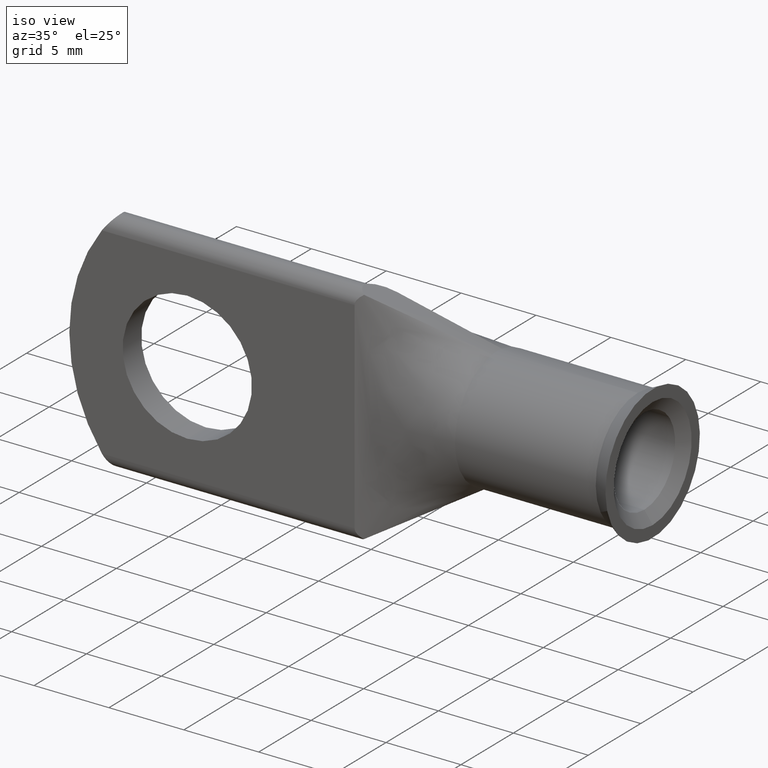
[diagram: clean part render]
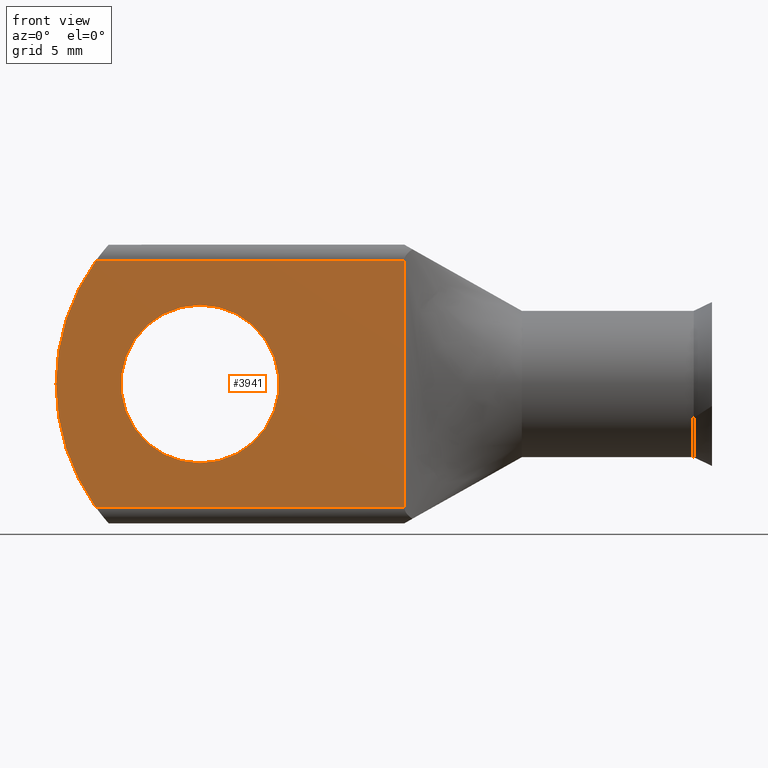
[diagram: tour spotlight — one face highlighted and labeled with its STEP entity id]
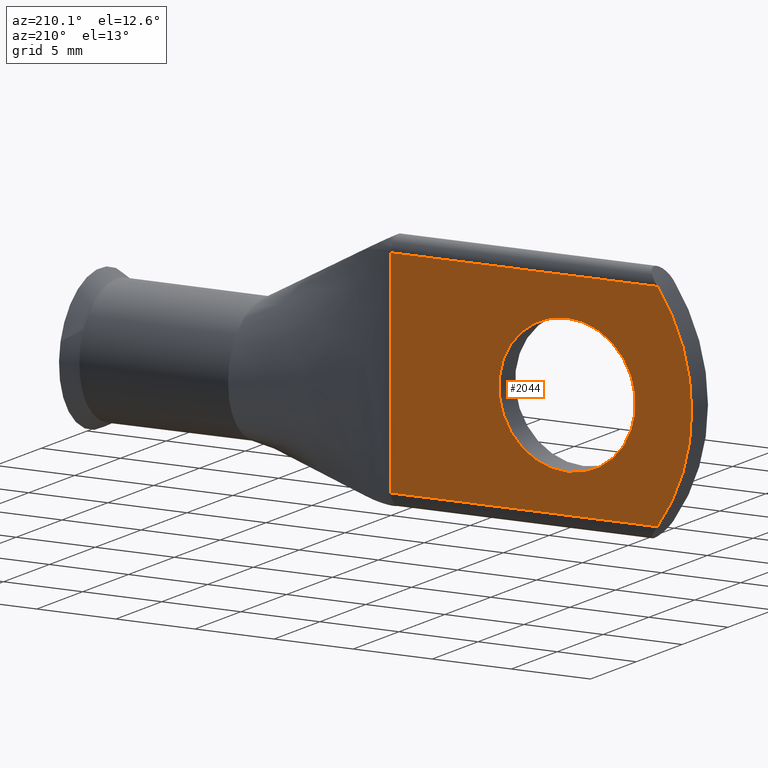
[diagram: tour spotlight — one face highlighted and labeled with its STEP entity id]
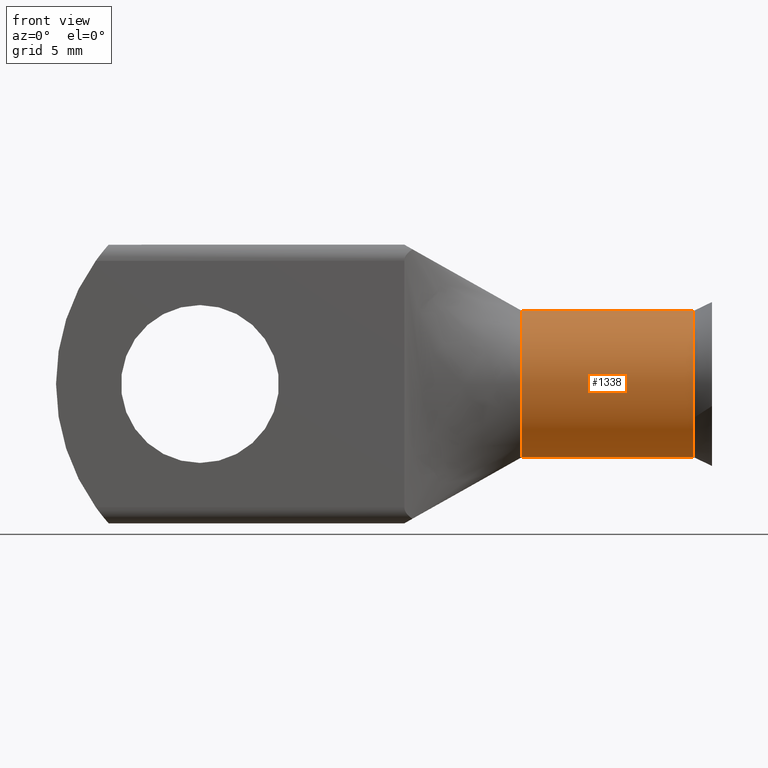
[diagram: tour spotlight — one face highlighted and labeled with its STEP entity id]
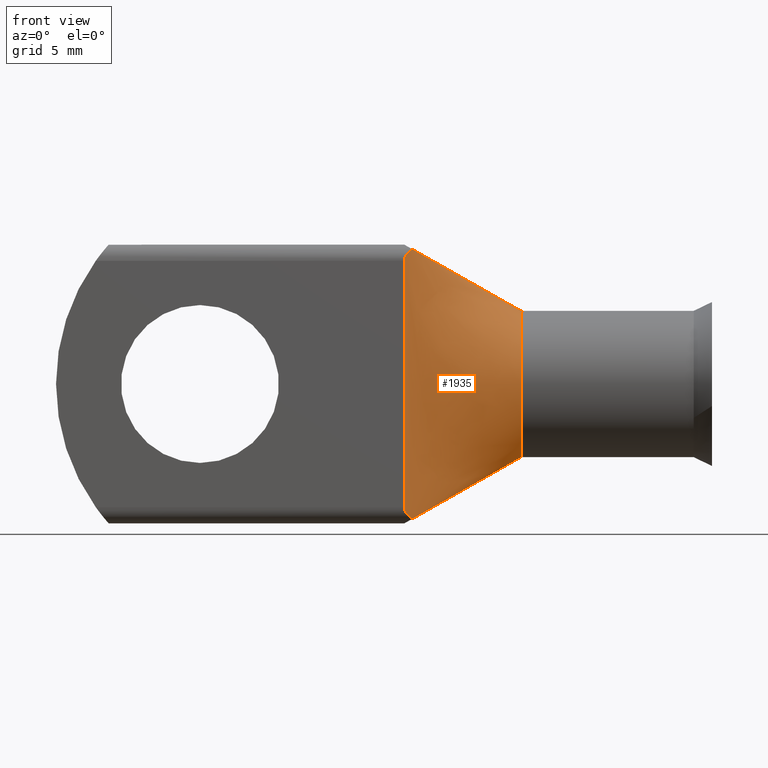
[diagram: tour spotlight — one face highlighted and labeled with its STEP entity id]
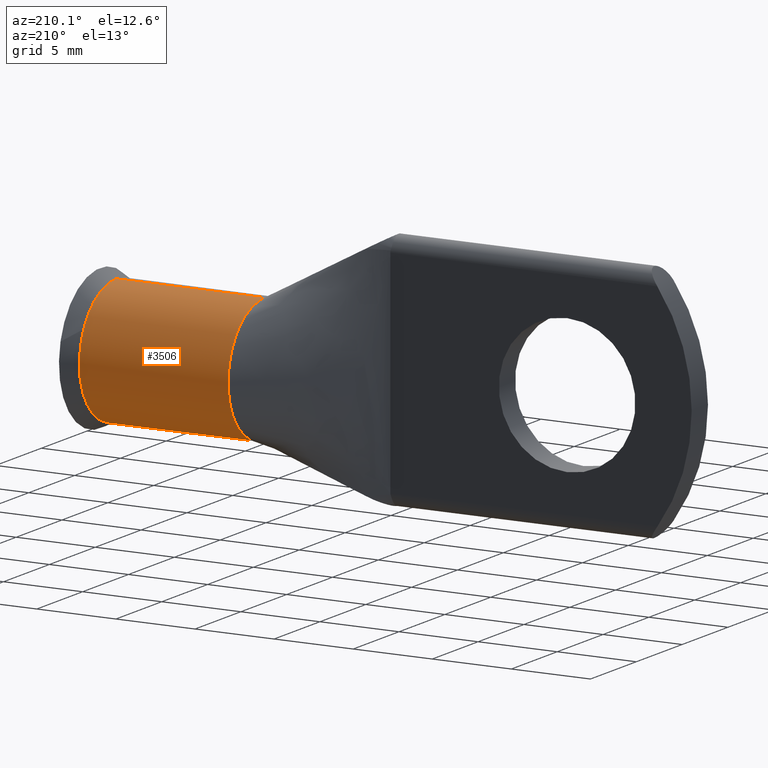
[diagram: tour spotlight — one face highlighted and labeled with its STEP entity id]
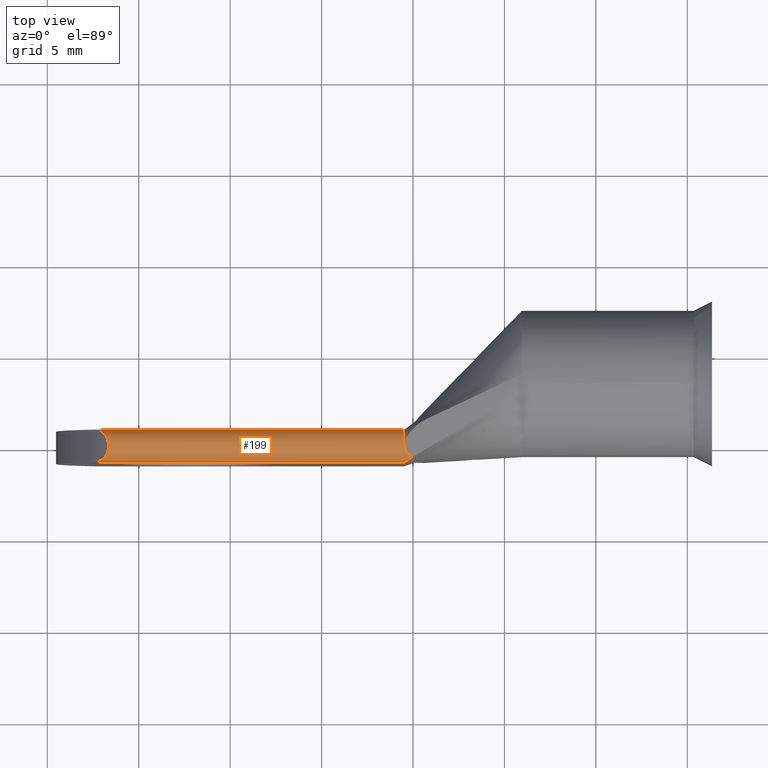
[diagram: tour spotlight — one face highlighted and labeled with its STEP entity id]
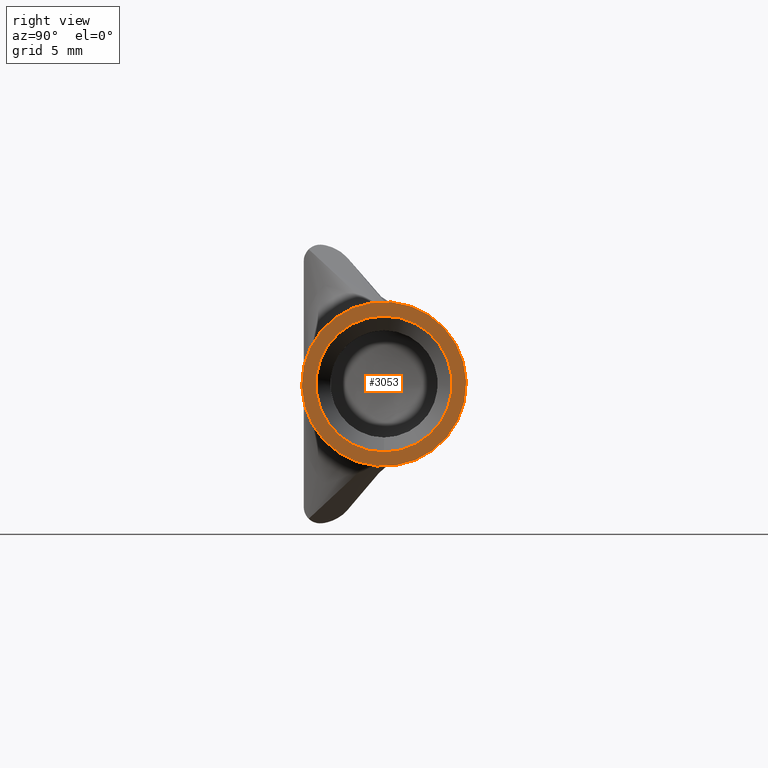
[diagram: tour spotlight — one face highlighted and labeled with its STEP entity id]
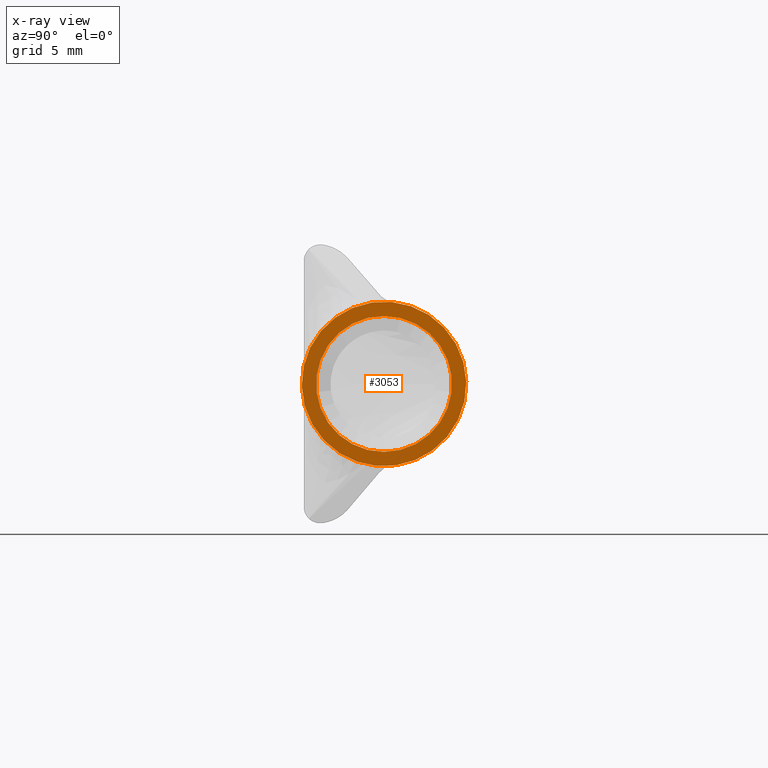
[diagram: x-ray of the same camera — body ghosted, this tour face saturated]
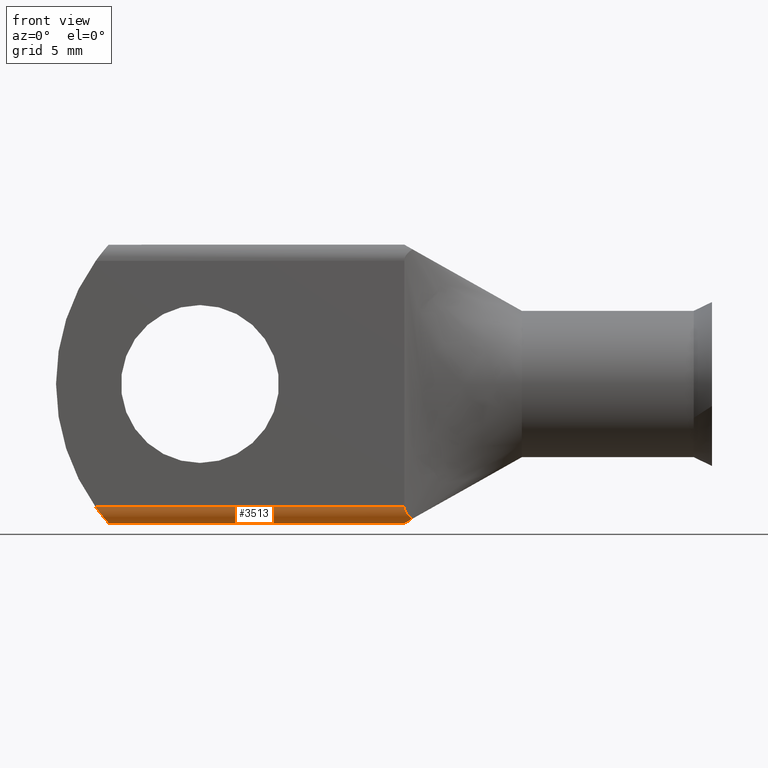
[diagram: tour spotlight — one face highlighted and labeled with its STEP entity id]
A machine part: a face-by-face anatomy tour. The part has 29 B-rep faces; the first image is the clean iso view, then the 8 largest visible faces are spotlighted one at a time (largest first), each with its STEP entity span.

Face 1 — front view, entity #3941. In plain terms, the highlighted planar face has unit normal (0, -1, 0).
Definition (entity closure, byte-faithful):
#47 = CIRCLE ( 'NONE', #2497, 0.1699999999999999845 ) ;
#254 = EDGE_CURVE ( 'NONE', #637, #2252, #1855, .T. ) ;
#290 = CARTESIAN_POINT ( 'NONE',  ( -0.2895837638798836600, -0.03500000000000000333, 0.2650000000001048184 ) ) ;
#330 = CARTESIAN_POINT ( 'NONE',  ( -0.2895837638798836600, -0.03500000000000000333, 0.2650000000001048184 ) ) ;
#344 = EDGE_CURVE ( 'NONE', #4105, #3587, #2508, .T. ) ;
#374 = DIRECTION ( 'NONE',  ( 0.000000000000000000, 0.000000000000000000, -1.000000000000000000 ) ) ;
#402 = CIRCLE ( 'NONE', #737, 0.1699999999999999845 ) ;
#522 = EDGE_CURVE ( 'NONE', #3587, #637, #3966, .T. ) ;
#637 = VERTEX_POINT ( 'NONE', #3292 ) ;
#664 = CARTESIAN_POINT ( 'NONE',  ( 0.07878336083534218104, -0.03500000000000000333, 2.954160186844080923E-17 ) ) ;
#737 = AXIS2_PLACEMENT_3D ( 'NONE', #2390, #1138, #2736 ) ;
#907 = EDGE_CURVE ( 'NONE', #2252, #4105, #3414, .T. ) ;
#1080 = EDGE_LOOP ( 'NONE', ( #2382, #1516 ) ) ;
#1138 = DIRECTION ( 'NONE',  ( -0.000000000000000000, -1.000000000000000000, 0.000000000000000000 ) ) ;
#1202 = CARTESIAN_POINT ( 'NONE',  ( -0.06499999999999998834, -0.03500000000000003803, 0.000000000000000000 ) ) ;
#1239 = VERTEX_POINT ( 'NONE', #2980 ) ;
#1260 = ORIENTED_EDGE ( 'NONE', *, *, #522, .T. ) ;
#1321 = DIRECTION ( 'NONE',  ( 0.000000000000000000, -0.000000000000000000, -1.000000000000000000 ) ) ;
#1350 = ORIENTED_EDGE ( 'NONE', *, *, #907, .T. ) ;
#1516 = ORIENTED_EDGE ( 'NONE', *, *, #2413, .F. ) ;
#1533 = ORIENTED_EDGE ( 'NONE', *, *, #344, .T. ) ;
#1534 = EDGE_CURVE ( 'NONE', #1239, #3609, #47, .T. ) ;
#1592 = CARTESIAN_POINT ( 'NONE',  ( 0.07878336083534218104, -0.03500000000000000333, 2.954160186844080923E-17 ) ) ;
#1603 = EDGE_LOOP ( 'NONE', ( #1350, #1533, #1260, #3956 ) ) ;
#1694 = AXIS2_PLACEMENT_3D ( 'NONE', #664, #2581, #374 ) ;
#1855 = LINE ( 'NONE', #290, #3551 ) ;
#1892 = VECTOR ( 'NONE', #2280, 39.37007874015748143 ) ;
#1961 = FACE_OUTER_BOUND ( 'NONE', #1603, .T. ) ;
#2252 = VERTEX_POINT ( 'NONE', #330 ) ;
#2280 = DIRECTION ( 'NONE',  ( -0.000000000000000000, 0.000000000000000000, 1.000000000000000000 ) ) ;
#2382 = ORIENTED_EDGE ( 'NONE', *, *, #1534, .F. ) ;
#2390 = CARTESIAN_POINT ( 'NONE',  ( -0.06499999999999998834, -0.03500000000000003803, 0.000000000000000000 ) ) ;
#2413 = EDGE_CURVE ( 'NONE', #3609, #1239, #402, .T. ) ;
#2497 = AXIS2_PLACEMENT_3D ( 'NONE', #1202, #3461, #2535 ) ;
#2508 = LINE ( 'NONE', #3516, #3196 ) ;
#2535 = DIRECTION ( 'NONE',  ( 0.000000000000000000, 0.000000000000000000, -1.000000000000000000 ) ) ;
#2547 = DIRECTION ( 'NONE',  ( 1.000000000000000000, 0.000000000000000000, -5.363413618387689923E-17 ) ) ;
#2581 = DIRECTION ( 'NONE',  ( -0.000000000000000000, -1.000000000000000000, 0.000000000000000000 ) ) ;
#2736 = DIRECTION ( 'NONE',  ( 0.000000000000000000, 0.000000000000000000, -1.000000000000000000 ) ) ;
#2826 = DIRECTION ( 'NONE',  ( -1.000000000000000000, 0.000000000000000000, 0.000000000000000000 ) ) ;
#2842 = AXIS2_PLACEMENT_3D ( 'NONE', #1592, #3228, #1321 ) ;
#2935 = PLANE ( 'NONE',  #2842 ) ;
#2980 = CARTESIAN_POINT ( 'NONE',  ( -0.06499999999999998834, -0.03500000000000003803, 0.1699999999999999845 ) ) ;
#3196 = VECTOR ( 'NONE', #2547, 39.37007874015748143 ) ;
#3228 = DIRECTION ( 'NONE',  ( 0.000000000000000000, -1.000000000000000000, 0.000000000000000000 ) ) ;
#3233 = CARTESIAN_POINT ( 'NONE',  ( -0.06499999999999997446, -0.03500000000000003803, -0.1699999999999999845 ) ) ;
#3292 = CARTESIAN_POINT ( 'NONE',  ( 0.3750000000000001110, -0.03500000000000000333, 0.2650000000000000688 ) ) ;
#3414 = CIRCLE ( 'NONE', #1694, 0.4537833608353421533 ) ;
#3461 = DIRECTION ( 'NONE',  ( -0.000000000000000000, -1.000000000000000000, 0.000000000000000000 ) ) ;
#3516 = CARTESIAN_POINT ( 'NONE',  ( 0.07878336083534216716, -0.03500000000000000333, -0.2649999999999999578 ) ) ;
#3551 = VECTOR ( 'NONE', #2826, 39.37007874015748143 ) ;
#3557 = FACE_BOUND ( 'NONE', #1080, .T. ) ;
#3587 = VERTEX_POINT ( 'NONE', #4225 ) ;
#3609 = VERTEX_POINT ( 'NONE', #3233 ) ;
#3923 = CARTESIAN_POINT ( 'NONE',  ( 0.3750000000000001110, -0.03500000000000000333, 2.954160186844080923E-17 ) ) ;
#3941 = ADVANCED_FACE ( 'NONE', ( #3557, #1961 ), #2935, .T. ) ;
#3956 = ORIENTED_EDGE ( 'NONE', *, *, #254, .T. ) ;
#3966 = LINE ( 'NONE', #3923, #1892 ) ;
#4105 = VERTEX_POINT ( 'NONE', #4201 ) ;
#4201 = CARTESIAN_POINT ( 'NONE',  ( -0.2895837638799520497, -0.03500000000000000333, -0.2650000000000097833 ) ) ;
#4225 = CARTESIAN_POINT ( 'NONE',  ( 0.3750000000000001110, -0.03500000000000000333, -0.2649999999999999578 ) ) ;

Face 2 — auxiliary view, entity #2044. In plain terms, the highlighted planar face has unit normal (0, -1, 0).
Definition (entity closure, byte-faithful):
#248 = ORIENTED_EDGE ( 'NONE', *, *, #2973, .F. ) ;
#250 = CARTESIAN_POINT ( 'NONE',  ( 0.3750000000000001665, 0.03500000000000000333, 2.954160186844080923E-17 ) ) ;
#331 = VECTOR ( 'NONE', #509, 39.37007874015748143 ) ;
#422 = VERTEX_POINT ( 'NONE', #2206 ) ;
#501 = DIRECTION ( 'NONE',  ( 0.000000000000000000, 1.000000000000000000, 0.000000000000000000 ) ) ;
#509 = DIRECTION ( 'NONE',  ( 1.000000000000000000, 0.000000000000000000, 0.000000000000000000 ) ) ;
#518 = DIRECTION ( 'NONE',  ( -0.000000000000000000, -1.000000000000000000, 0.000000000000000000 ) ) ;
#519 = CARTESIAN_POINT ( 'NONE',  ( -0.06499999999999998834, 0.03500000000000000333, 0.000000000000000000 ) ) ;
#761 = EDGE_CURVE ( 'NONE', #1714, #422, #1278, .T. ) ;
#800 = DIRECTION ( 'NONE',  ( 0.000000000000000000, 0.000000000000000000, 1.000000000000000000 ) ) ;
#836 = VERTEX_POINT ( 'NONE', #3655 ) ;
#847 = DIRECTION ( 'NONE',  ( 0.000000000000000000, 0.000000000000000000, 1.000000000000000000 ) ) ;
#937 = AXIS2_PLACEMENT_3D ( 'NONE', #3269, #967, #2001 ) ;
#967 = DIRECTION ( 'NONE',  ( 0.000000000000000000, -1.000000000000000000, 0.000000000000000000 ) ) ;
#1026 = EDGE_LOOP ( 'NONE', ( #248, #3415, #2532, #3783 ) ) ;
#1094 = VERTEX_POINT ( 'NONE', #2995 ) ;
#1101 = DIRECTION ( 'NONE',  ( -1.000000000000000000, 0.000000000000000000, 5.363413618387689923E-17 ) ) ;
#1149 = DIRECTION ( 'NONE',  ( 0.000000000000000000, 1.000000000000000000, 0.000000000000000000 ) ) ;
#1179 = DIRECTION ( 'NONE',  ( -0.000000000000000000, 0.000000000000000000, 1.000000000000000000 ) ) ;
#1278 = CIRCLE ( 'NONE', #3678, 0.1699999999999999845 ) ;
#1292 = CIRCLE ( 'NONE', #2915, 0.1699999999999999845 ) ;
#1316 = CARTESIAN_POINT ( 'NONE',  ( 0.3750000000000001665, 0.03500000000000000333, -0.2649999999999999578 ) ) ;
#1714 = VERTEX_POINT ( 'NONE', #2600 ) ;
#2001 = DIRECTION ( 'NONE',  ( 0.000000000000000000, -0.000000000000000000, -1.000000000000000000 ) ) ;
#2042 = FACE_OUTER_BOUND ( 'NONE', #1026, .T. ) ;
#2044 = ADVANCED_FACE ( 'NONE', ( #3942, #2042 ), #3337, .F. ) ;
#2206 = CARTESIAN_POINT ( 'NONE',  ( -0.06499999999999997446, 0.03500000000000000333, -0.1699999999999999845 ) ) ;
#2283 = EDGE_CURVE ( 'NONE', #836, #3473, #2931, .T. ) ;
#2443 = LINE ( 'NONE', #3490, #331 ) ;
#2471 = EDGE_CURVE ( 'NONE', #1094, #3473, #2838, .T. ) ;
#2532 = ORIENTED_EDGE ( 'NONE', *, *, #2471, .F. ) ;
#2600 = CARTESIAN_POINT ( 'NONE',  ( -0.06499999999999998834, 0.03500000000000000333, 0.1699999999999999845 ) ) ;
#2708 = ORIENTED_EDGE ( 'NONE', *, *, #3648, .F. ) ;
#2838 = CIRCLE ( 'NONE', #3682, 0.4537833608353421533 ) ;
#2915 = AXIS2_PLACEMENT_3D ( 'NONE', #3470, #1149, #847 ) ;
#2931 = LINE ( 'NONE', #1316, #4147 ) ;
#2943 = EDGE_LOOP ( 'NONE', ( #4010, #2708 ) ) ;
#2973 = EDGE_CURVE ( 'NONE', #836, #3383, #4107, .T. ) ;
#2995 = CARTESIAN_POINT ( 'NONE',  ( -0.2895837638798836600, 0.03500000000000000333, 0.2650000000001048184 ) ) ;
#3184 = CARTESIAN_POINT ( 'NONE',  ( -0.2895837638799520497, 0.03500000000000000333, -0.2650000000000097833 ) ) ;
#3199 = VECTOR ( 'NONE', #1179, 39.37007874015748143 ) ;
#3269 = CARTESIAN_POINT ( 'NONE',  ( 0.07878336083534218104, 0.03500000000000000333, 2.954160186844080923E-17 ) ) ;
#3337 = PLANE ( 'NONE',  #937 ) ;
#3383 = VERTEX_POINT ( 'NONE', #3454 ) ;
#3415 = ORIENTED_EDGE ( 'NONE', *, *, #2283, .T. ) ;
#3454 = CARTESIAN_POINT ( 'NONE',  ( 0.3750000000000001665, 0.03500000000000000333, 0.2650000000000000133 ) ) ;
#3470 = CARTESIAN_POINT ( 'NONE',  ( -0.06499999999999998834, 0.03500000000000000333, 0.000000000000000000 ) ) ;
#3473 = VERTEX_POINT ( 'NONE', #3184 ) ;
#3490 = CARTESIAN_POINT ( 'NONE',  ( 0.07878336083534218104, 0.03500000000000000333, 0.2650000000001048184 ) ) ;
#3648 = EDGE_CURVE ( 'NONE', #422, #1714, #1292, .T. ) ;
#3655 = CARTESIAN_POINT ( 'NONE',  ( 0.3750000000000001665, 0.03500000000000000333, -0.2649999999999999578 ) ) ;
#3678 = AXIS2_PLACEMENT_3D ( 'NONE', #519, #501, #800 ) ;
#3682 = AXIS2_PLACEMENT_3D ( 'NONE', #3695, #518, #3714 ) ;
#3695 = CARTESIAN_POINT ( 'NONE',  ( 0.07878336083534218104, 0.03500000000000000333, 2.954160186844080923E-17 ) ) ;
#3714 = DIRECTION ( 'NONE',  ( 0.000000000000000000, 0.000000000000000000, -1.000000000000000000 ) ) ;
#3783 = ORIENTED_EDGE ( 'NONE', *, *, #3813, .T. ) ;
#3813 = EDGE_CURVE ( 'NONE', #1094, #3383, #2443, .T. ) ;
#3942 = FACE_BOUND ( 'NONE', #2943, .T. ) ;
#4010 = ORIENTED_EDGE ( 'NONE', *, *, #761, .F. ) ;
#4107 = LINE ( 'NONE', #250, #3199 ) ;
#4147 = VECTOR ( 'NONE', #1101, 39.37007874015748143 ) ;

Face 3 — front view, entity #1338. In plain terms, the highlighted cylindrical surface (partial cylindrical patch) has radius 4.0005 mm, axis along (1, 0, 0).
Definition (entity closure, byte-faithful):
#21 = EDGE_CURVE ( 'NONE', #2465, #3934, #3103, .T. ) ;
#81 = VERTEX_POINT ( 'NONE', #2730 ) ;
#102 = ORIENTED_EDGE ( 'NONE', *, *, #3244, .F. ) ;
#123 = VECTOR ( 'NONE', #4220, 39.37007874015748143 ) ;
#146 = ORIENTED_EDGE ( 'NONE', *, *, #3697, .F. ) ;
#164 = CARTESIAN_POINT ( 'NONE',  ( 0.6280315000000000758, 0.1377522466780526089, 0.1575000000000000011 ) ) ;
#262 = DIRECTION ( 'NONE',  ( 0.000000000000000000, 0.000000000000000000, -1.000000000000000000 ) ) ;
#324 = CARTESIAN_POINT ( 'NONE',  ( 0.6280315000000000758, 0.1194999164147739074, -0.1564487580215168927 ) ) ;
#454 = VERTEX_POINT ( 'NONE', #3540 ) ;
#512 = CARTESIAN_POINT ( 'NONE',  ( 0.6280315000000000758, 0.1377522466780526089, 0.000000000000000000 ) ) ;
#530 = VERTEX_POINT ( 'NONE', #1404 ) ;
#590 = CARTESIAN_POINT ( 'NONE',  ( 0.6280315000000000758, 0.1377522466780526089, 0.000000000000000000 ) ) ;
#596 = AXIS2_PLACEMENT_3D ( 'NONE', #1289, #3630, #682 ) ;
#650 = LINE ( 'NONE', #3906, #123 ) ;
#667 = CIRCLE ( 'NONE', #3136, 0.1575000000000000011 ) ;
#682 = DIRECTION ( 'NONE',  ( 0.000000000000000000, 0.000000000000000000, -1.000000000000000000 ) ) ;
#710 = ORIENTED_EDGE ( 'NONE', *, *, #1674, .T. ) ;
#811 = AXIS2_PLACEMENT_3D ( 'NONE', #1870, #3818, #262 ) ;
#1057 = VERTEX_POINT ( 'NONE', #2624 ) ;
#1083 = CIRCLE ( 'NONE', #811, 0.1575000000000000011 ) ;
#1147 = AXIS2_PLACEMENT_3D ( 'NONE', #512, #1513, #3494 ) ;
#1289 = CARTESIAN_POINT ( 'NONE',  ( 0.9980315000000000714, 0.1377522466780526089, 0.000000000000000000 ) ) ;
#1338 = ADVANCED_FACE ( 'NONE', ( #3679 ), #2051, .T. ) ;
#1404 = CARTESIAN_POINT ( 'NONE',  ( 0.6280315000000000758, 0.1194999350007622529, 0.1564486142684360925 ) ) ;
#1478 = ORIENTED_EDGE ( 'NONE', *, *, #3460, .T. ) ;
#1489 = CIRCLE ( 'NONE', #596, 0.1575000000000000011 ) ;
#1513 = DIRECTION ( 'NONE',  ( 1.000000000000000000, 0.000000000000000000, 0.000000000000000000 ) ) ;
#1519 = CARTESIAN_POINT ( 'NONE',  ( 0.6280315000000000758, 0.1377522466780526089, 0.000000000000000000 ) ) ;
#1674 = EDGE_CURVE ( 'NONE', #530, #3128, #2431, .T. ) ;
#1728 = DIRECTION ( 'NONE',  ( 1.000000000000000000, 0.000000000000000000, 0.000000000000000000 ) ) ;
#1777 = EDGE_LOOP ( 'NONE', ( #2132, #3348, #710, #1478, #3687, #102, #146 ) ) ;
#1870 = CARTESIAN_POINT ( 'NONE',  ( 0.9980315000000000714, 0.1377522466780526089, 0.000000000000000000 ) ) ;
#1900 = DIRECTION ( 'NONE',  ( 0.000000000000000000, 0.000000000000000000, -1.000000000000000000 ) ) ;
#2051 = CYLINDRICAL_SURFACE ( 'NONE', #2563, 0.1575000000000000011 ) ;
#2080 = DIRECTION ( 'NONE',  ( 1.000000000000000000, 0.000000000000000000, 0.000000000000000000 ) ) ;
#2132 = ORIENTED_EDGE ( 'NONE', *, *, #21, .F. ) ;
#2365 = CARTESIAN_POINT ( 'NONE',  ( 0.6280315000000002978, 0.1377522466780525534, 0.1574982129540110631 ) ) ;
#2431 = CIRCLE ( 'NONE', #2983, 0.1575000000000000011 ) ;
#2465 = VERTEX_POINT ( 'NONE', #2365 ) ;
#2563 = AXIS2_PLACEMENT_3D ( 'NONE', #3366, #1728, #2700 ) ;
#2624 = CARTESIAN_POINT ( 'NONE',  ( 0.6280315000000000758, 0.1377522466780525812, -0.1574982129540110354 ) ) ;
#2700 = DIRECTION ( 'NONE',  ( 0.000000000000000000, 0.000000000000000000, -1.000000000000000000 ) ) ;
#2730 = CARTESIAN_POINT ( 'NONE',  ( 0.9980315000000000714, -0.001763637606080718139, -0.07308603171890180883 ) ) ;
#2983 = AXIS2_PLACEMENT_3D ( 'NONE', #1519, #3898, #3631 ) ;
#2987 = CIRCLE ( 'NONE', #1147, 0.1575000000000000011 ) ;
#3056 = VECTOR ( 'NONE', #2080, 39.37007874015748143 ) ;
#3103 = LINE ( 'NONE', #164, #3056 ) ;
#3128 = VERTEX_POINT ( 'NONE', #324 ) ;
#3136 = AXIS2_PLACEMENT_3D ( 'NONE', #590, #3518, #1900 ) ;
#3244 = EDGE_CURVE ( 'NONE', #81, #454, #1489, .T. ) ;
#3307 = EDGE_CURVE ( 'NONE', #2465, #530, #2987, .T. ) ;
#3318 = CARTESIAN_POINT ( 'NONE',  ( 0.9980315000000000714, 0.1377522466780526089, 0.1575000000000000011 ) ) ;
#3348 = ORIENTED_EDGE ( 'NONE', *, *, #3307, .T. ) ;
#3366 = CARTESIAN_POINT ( 'NONE',  ( 0.6280315000000000758, 0.1377522466780526089, 0.000000000000000000 ) ) ;
#3460 = EDGE_CURVE ( 'NONE', #3128, #1057, #667, .T. ) ;
#3494 = DIRECTION ( 'NONE',  ( 0.000000000000000000, 0.000000000000000000, -1.000000000000000000 ) ) ;
#3518 = DIRECTION ( 'NONE',  ( 1.000000000000000000, 0.000000000000000000, 0.000000000000000000 ) ) ;
#3540 = CARTESIAN_POINT ( 'NONE',  ( 0.9980315000000000714, 0.1377522466780526089, -0.1575000000000000011 ) ) ;
#3630 = DIRECTION ( 'NONE',  ( 1.000000000000000000, 0.000000000000000000, 0.000000000000000000 ) ) ;
#3631 = DIRECTION ( 'NONE',  ( 0.000000000000000000, 0.000000000000000000, -1.000000000000000000 ) ) ;
#3679 = FACE_OUTER_BOUND ( 'NONE', #1777, .T. ) ;
#3687 = ORIENTED_EDGE ( 'NONE', *, *, #3864, .T. ) ;
#3697 = EDGE_CURVE ( 'NONE', #3934, #81, #1083, .T. ) ;
#3818 = DIRECTION ( 'NONE',  ( 1.000000000000000000, 0.000000000000000000, 0.000000000000000000 ) ) ;
#3864 = EDGE_CURVE ( 'NONE', #1057, #454, #650, .T. ) ;
#3898 = DIRECTION ( 'NONE',  ( 1.000000000000000000, 0.000000000000000000, 0.000000000000000000 ) ) ;
#3906 = CARTESIAN_POINT ( 'NONE',  ( 0.6280315000000000758, 0.1377522466780526089, -0.1575000000000000011 ) ) ;
#3934 = VERTEX_POINT ( 'NONE', #3318 ) ;
#4220 = DIRECTION ( 'NONE',  ( 1.000000000000000000, 0.000000000000000000, 0.000000000000000000 ) ) ;

Face 4 — front view, entity #1935. In plain terms, the highlighted face is a freeform B-spline surface patch.
Definition (entity closure, byte-faithful):
#1 = CARTESIAN_POINT ( 'NONE',  ( 0.3756586835434320149, -0.03464581776898995741, 0.2706242671153034074 ) ) ;
#57 = CARTESIAN_POINT ( 'NONE',  ( 0.6392752523711240364, 0.1275656665848926008, -0.1501010414598510923 ) ) ;
#78 = CARTESIAN_POINT ( 'NONE',  ( 0.6280315000000000758, 0.1229455593933067303, -0.1568408054107719718 ) ) ;
#121 = CARTESIAN_POINT ( 'NONE',  ( 0.6392752523711240364, 0.1299640561335820843, -0.1501838443508269616 ) ) ;
#130 = EDGE_CURVE ( 'NONE', #530, #387, #2767, .T. ) ;
#161 = CARTESIAN_POINT ( 'NONE',  ( 0.6280315000000002978, -0.01843236913803242630, 0.02336204810545153623 ) ) ;
#178 = CARTESIAN_POINT ( 'NONE',  ( 0.6392752523711241475, -0.01769616697036495087, 0.02328926378611533704 ) ) ;
#183 = ORIENTED_EDGE ( 'NONE', *, *, #837, .T. ) ;
#197 = CARTESIAN_POINT ( 'NONE',  ( 0.6392752523711239254, 0.1287648613592370372, 0.1501424429053389853 ) ) ;
#275 = EDGE_CURVE ( 'NONE', #3128, #2964, #2916, .T. ) ;
#280 = CARTESIAN_POINT ( 'NONE',  ( 0.6280315000000002978, -0.01843236913803244711, -0.02336204810545143215 ) ) ;
#306 = CARTESIAN_POINT ( 'NONE',  ( 0.3750000000000001110, -0.03500000000000000333, 0.1000000000000000888 ) ) ;
#324 = CARTESIAN_POINT ( 'NONE',  ( 0.6280315000000000758, 0.1194999164147739074, -0.1564487580215168927 ) ) ;
#325 = CARTESIAN_POINT ( 'NONE',  ( 0.3842627041427663093, -0.02959582827009948555, -0.2842360095710103618 ) ) ;
#383 = CARTESIAN_POINT ( 'NONE',  ( 0.6392752523711237034, 0.09794376459143530611, -0.1472890542451660567 ) ) ;
#387 = VERTEX_POINT ( 'NONE', #2527 ) ;
#451 = CARTESIAN_POINT ( 'NONE',  ( 0.6392752523711241475, -0.01239761256628541669, -0.04569421617438772926 ) ) ;
#469 = CARTESIAN_POINT ( 'NONE',  ( 0.6280315000000000758, 0.1206492107959852012, -0.1565728980744178211 ) ) ;
#489 = CARTESIAN_POINT ( 'NONE',  ( 0.6280314999999999648, 0.004555658950154521658, 0.08695150554759299710 ) ) ;
#508 = CARTESIAN_POINT ( 'NONE',  ( 0.6280315000000000758, 0.06243349272944602457, 0.1392643481345597345 ) ) ;
#522 = EDGE_CURVE ( 'NONE', #3587, #637, #3966, .T. ) ;
#527 = CARTESIAN_POINT ( 'NONE',  ( 0.6280315000000000758, 0.1229455593933062585, 0.1568408054107719718 ) ) ;
#530 = VERTEX_POINT ( 'NONE', #1404 ) ;
#544 = CARTESIAN_POINT ( 'NONE',  ( 0.3750000000000001110, -0.03500000000000000333, -0.02499999999999989383 ) ) ;
#624 = CARTESIAN_POINT ( 'NONE',  ( 0.6392752523711239254, 0.06676306460055135561, 0.1365654879939298127 ) ) ;
#637 = VERTEX_POINT ( 'NONE', #3292 ) ;
#717 = CARTESIAN_POINT ( 'NONE',  ( 0.6392752523711240364, 0.05045609900690401634, -0.1280725933424894936 ) ) ;
#743 = CARTESIAN_POINT ( 'NONE',  ( 0.3750000000000001110, -0.03500000000000000333, -0.3066502984377985075 ) ) ;
#747 = ORIENTED_EDGE ( 'NONE', *, *, #275, .F. ) ;
#765 = CARTESIAN_POINT ( 'NONE',  ( 0.3750000000000001110, -0.03500000000000000333, -0.06249999999999989592 ) ) ;
#790 = CARTESIAN_POINT ( 'NONE',  ( 0.6392752523711237034, 0.06676306460055118908, -0.1365654879939297017 ) ) ;
#794 = DIRECTION ( 'NONE',  ( -0.7681554923533345791, -0.4690357515159294111, 0.4358240509280016384 ) ) ;
#808 = CARTESIAN_POINT ( 'NONE',  ( 0.3750000000000001110, -0.03500000000000000333, 0.02500000000000010200 ) ) ;
#828 = CARTESIAN_POINT ( 'NONE',  ( 0.6280315000000002978, -0.01335924497424166232, -0.04587740838275533584 ) ) ;
#837 = EDGE_CURVE ( 'NONE', #387, #637, #3732, .T. ) ;
#846 = CARTESIAN_POINT ( 'NONE',  ( 0.6280315000000000758, 0.1206492107959851595, 0.1565728980744178211 ) ) ;
#1031 = CARTESIAN_POINT ( 'NONE',  ( 0.3793172982802010540, -0.03255402205359866907, 0.2780590027775435291 ) ) ;
#1044 = CARTESIAN_POINT ( 'NONE',  ( 0.6280315000000000758, 0.1065522834142880321, -0.1549282565465531503 ) ) ;
#1063 = CARTESIAN_POINT ( 'NONE',  ( 0.3750000000000001110, -0.03500000000000000333, -0.2999999999999999334 ) ) ;
#1089 = CARTESIAN_POINT ( 'NONE',  ( 0.6280315000000000758, -0.009605635316952703187, -0.05670816465715741023 ) ) ;
#1148 = CARTESIAN_POINT ( 'NONE',  ( 0.6392752523711241475, -0.01239761256628538200, 0.04569421617438782640 ) ) ;
#1168 = CARTESIAN_POINT ( 'NONE',  ( 0.3750000000000001665, -0.03500000000000000333, 0.2750000000000001332 ) ) ;
#1189 = CARTESIAN_POINT ( 'NONE',  ( 0.3750000000000001665, -0.03500000000000000333, 0.3044335322918650388 ) ) ;
#1314 = CARTESIAN_POINT ( 'NONE',  ( 0.3882265990797002519, -0.02711576883040150293, 0.2874582671201161843 ) ) ;
#1391 = CARTESIAN_POINT ( 'NONE',  ( 0.3750000000000001110, -0.03500000000000000333, -0.3044335322918656495 ) ) ;
#1404 = CARTESIAN_POINT ( 'NONE',  ( 0.6280315000000000758, 0.1194999350007622529, 0.1564486142684360925 ) ) ;
#1414 = CARTESIAN_POINT ( 'NONE',  ( 0.6392752523711241475, 0.02018939270506526704, -0.1030265135893236733 ) ) ;
#1453 = CARTESIAN_POINT ( 'NONE',  ( 0.6280314999999999648, 0.06243349272944587192, -0.1392643481345596235 ) ) ;
#1470 = CARTESIAN_POINT ( 'NONE',  ( 0.6280315000000002978, -0.01335924497424162936, 0.04587740838275544686 ) ) ;
#1490 = CARTESIAN_POINT ( 'NONE',  ( 0.6392752523711234813, 0.09794376459143543101, 0.1472890542451660845 ) ) ;
#1506 = CARTESIAN_POINT ( 'NONE',  ( 0.6392752523711237034, 0.006313361189251892776, 0.08637168034622934309 ) ) ;
#1519 = CARTESIAN_POINT ( 'NONE',  ( 0.6280315000000000758, 0.1377522466780526089, 0.000000000000000000 ) ) ;
#1586 = CARTESIAN_POINT ( 'NONE',  ( 0.3750000000000001110, -0.03500000000000000333, 0.05000000000000009992 ) ) ;
#1611 = CARTESIAN_POINT ( 'NONE',  ( 0.6280315000000000758, -0.01974775332194739219, 0.01168277102172163469 ) ) ;
#1631 = CARTESIAN_POINT ( 'NONE',  ( 0.3882730518053659208, -0.02708527354196481676, -0.2874878486892167295 ) ) ;
#1633 = CARTESIAN_POINT ( 'NONE',  ( 0.3843103657315625199, -0.02956687635203437622, 0.2842874945087266458 ) ) ;
#1674 = EDGE_CURVE ( 'NONE', #530, #3128, #2431, .T. ) ;
#1792 = CARTESIAN_POINT ( 'NONE',  ( 0.6392752523711240364, -0.01907000179792243955, 0.01164645649067601665 ) ) ;
#1811 = CARTESIAN_POINT ( 'NONE',  ( 0.3750000000000001665, -0.03500000000000000333, 0.2000000000000001221 ) ) ;
#1833 = CARTESIAN_POINT ( 'NONE',  ( 0.3750000000000001665, -0.03500000000000000333, 0.3066502984377975083 ) ) ;
#1880 = EDGE_CURVE ( 'NONE', #3587, #2964, #2455, .T. ) ;
#1892 = VECTOR ( 'NONE', #2280, 39.37007874015748143 ) ;
#1911 = CARTESIAN_POINT ( 'NONE',  ( 0.6280315000000002978, 0.04682031696823422268, 0.1300691485823086135 ) ) ;
#1935 = ADVANCED_FACE ( 'NONE', ( #3683 ), #2778, .T. ) ;
#1996 = CARTESIAN_POINT ( 'NONE',  ( 0.3924099061534646049, -0.02436951112398494032, -0.2901222397006710252 ) ) ;
#2010 = CARTESIAN_POINT ( 'NONE',  ( 0.3750000000000001110, -0.03500000000000000333, -0.2749999999999999112 ) ) ;
#2076 = CARTESIAN_POINT ( 'NONE',  ( 0.6392752523711240364, 0.1128423256512324224, -0.1495927273726768980 ) ) ;
#2094 = CARTESIAN_POINT ( 'NONE',  ( 0.6280315000000002978, 0.01784132621181284614, -0.1039613890183136852 ) ) ;
#2111 = CARTESIAN_POINT ( 'NONE',  ( 0.6280314999999997427, 0.09228759075397015288, 0.1516589543001644891 ) ) ;
#2129 = CARTESIAN_POINT ( 'NONE',  ( 0.3750000000000001110, -0.03500000000000000333, 0.01250000000000010304 ) ) ;
#2147 = CARTESIAN_POINT ( 'NONE',  ( 0.3750000000000001665, -0.03500000000000000333, 0.3022167661459325694 ) ) ;
#2280 = DIRECTION ( 'NONE',  ( -0.000000000000000000, 0.000000000000000000, 1.000000000000000000 ) ) ;
#2320 = CARTESIAN_POINT ( 'NONE',  ( 0.3749999999999895084, -0.03500000000002316536, 0.2678352870958661258 ) ) ;
#2331 = CARTESIAN_POINT ( 'NONE',  ( 0.3750000000000001110, -0.03500000000000000333, -0.1999999999999999278 ) ) ;
#2350 = CARTESIAN_POINT ( 'NONE',  ( 0.6280315000000000758, 0.04682031696823416717, -0.1300691485823085858 ) ) ;
#2399 = CARTESIAN_POINT ( 'NONE',  ( 0.6392752523711240364, 0.1287648613592373426, -0.1501424429053390130 ) ) ;
#2422 = CARTESIAN_POINT ( 'NONE',  ( 0.3750000000000001110, -0.03500000000000000333, -0.3022167661459327914 ) ) ;
#2431 = CIRCLE ( 'NONE', #2983, 0.1575000000000000011 ) ;
#2442 = CARTESIAN_POINT ( 'NONE',  ( 0.6280315000000000758, 0.01784132621181292594, 0.1039613890183138101 ) ) ;
#2450 = ORIENTED_EDGE ( 'NONE', *, *, #522, .F. ) ;
#2455 = B_SPLINE_CURVE_WITH_KNOTS ( 'NONE', 3,
 ( #3590, #3265, #3917, #325, #1631, #1996 ),
 .UNSPECIFIED., .F., .F.,
 ( 4, 2, 4 ),
 ( 8.741117365843378158E-19, 0.0004299134750939719507, 0.0008598269501879430340 ),
 .UNSPECIFIED. ) ;
#2462 = CARTESIAN_POINT ( 'NONE',  ( 0.3750000000000001665, -0.03500000000000000333, 0.3000000000000000999 ) ) ;
#2527 = CARTESIAN_POINT ( 'NONE',  ( 0.3924099061534160882, -0.02436951112401454858, 0.2901222397006986697 ) ) ;
#2553 = ORIENTED_EDGE ( 'NONE', *, *, #1880, .T. ) ;
#2560 = CARTESIAN_POINT ( 'NONE',  ( 0.6280315000000000758, 0.1217973850946457159, 0.1567068517425949103 ) ) ;
#2570 = CARTESIAN_POINT ( 'NONE',  ( 0.5015157500000001489, 0.04225051824866222355, -0.2282194722031203327 ) ) ;
#2660 = CARTESIAN_POINT ( 'NONE',  ( 0.6392752523711240364, 0.1263664718105478313, -0.1500596400143631715 ) ) ;
#2703 = CARTESIAN_POINT ( 'NONE',  ( 0.6392752523711235924, 0.006313361189251818183, -0.08637168034622924595 ) ) ;
#2707 = VECTOR ( 'NONE', #4139, 39.37007874015748143 ) ;
#2745 = CARTESIAN_POINT ( 'NONE',  ( 0.6280314999999998538, 0.004555658950154451402, -0.08695150554759291384 ) ) ;
#2765 = CARTESIAN_POINT ( 'NONE',  ( 0.6280315000000000758, -0.009605635316952656350, 0.05670816465715750737 ) ) ;
#2767 = LINE ( 'NONE', #4044, #2773 ) ;
#2773 = VECTOR ( 'NONE', #794, 39.37007874015748854 ) ;
#2778 = B_SPLINE_SURFACE_WITH_KNOTS ( 'NONE', 3, 1, ( 
 ( #121, #78, #743 ),
 ( #2399, #3705, #1391 ),
 ( #57, #469, #2422 ),
 ( #2660, #3974, #1063 ),
 ( #2076, #1044, #2010 ),
 ( #383, #3723, #3993 ),
 ( #790, #1453, #2331 ),
 ( #717, #2350, #3369 ),
 ( #1414, #2094, #3078 ),
 ( #2703, #2745, #3344 ),
 ( #4019, #1089, #765 ),
 ( #451, #828, #3245 ),
 ( #3098, #280, #544 ),
 ( #2782, #3429, #3448 ),
 ( #1792, #1611, #2129 ),
 ( #178, #161, #808 ),
 ( #1148, #1470, #1586 ),
 ( #2905, #2765, #3118 ),
 ( #1506, #489, #306 ),
 ( #4078, #2442, #3761 ),
 ( #3222, #1911, #3488 ),
 ( #624, #508, #1811 ),
 ( #1490, #2111, #3142 ),
 ( #4215, #4097, #1168 ),
 ( #2882, #4195, #2462 ),
 ( #3777, #846, #2147 ),
 ( #197, #2560, #1189 ),
 ( #3469, #527, #1833 ) ),
 .UNSPECIFIED., .F., .F., .F.,
 ( 4, 3, 2, 2, 2, 2, 2, 2, 2, 2, 2, 3, 4 ),
 ( 2, 1, 2 ),
 ( -0.01108383072966433701, 0.000000000000000000, 0.1250000000000000000, 0.2500000000000000000, 0.3750000000000000000, 0.4375000000000000000, 0.5000000000000000000, 0.5625000000000000000, 0.6250000000000000000, 0.7500000000000000000, 0.8750000000000000000, 1.000000000000000000, 1.011083830729662347 ),
 ( -0.04443617640935556418, 0.000000000000000000, 1.000000000000000000 ),
 .UNSPECIFIED. ) ;
#2782 = CARTESIAN_POINT ( 'NONE',  ( 0.6392752523711240364, -0.01907000179792244995, -0.01164645649067591604 ) ) ;
#2882 = CARTESIAN_POINT ( 'NONE',  ( 0.6392752523711239254, 0.1263664718105479978, 0.1500596400143631437 ) ) ;
#2905 = CARTESIAN_POINT ( 'NONE',  ( 0.6392752523711240364, -0.008477206848093256364, 0.05645079764012900930 ) ) ;
#2916 = LINE ( 'NONE', #2570, #2707 ) ;
#2948 = CARTESIAN_POINT ( 'NONE',  ( 0.3750000000000001110, -0.03500000000000000333, 0.2650000000000000688 ) ) ;
#2964 = VERTEX_POINT ( 'NONE', #3239 ) ;
#2983 = AXIS2_PLACEMENT_3D ( 'NONE', #1519, #3898, #3631 ) ;
#3078 = CARTESIAN_POINT ( 'NONE',  ( 0.3750000000000001110, -0.03500000000000000333, -0.1249999999999999167 ) ) ;
#3098 = CARTESIAN_POINT ( 'NONE',  ( 0.6392752523711241475, -0.01769616697036497516, -0.02328926378611523643 ) ) ;
#3118 = CARTESIAN_POINT ( 'NONE',  ( 0.3750000000000001110, -0.03500000000000001027, 0.06250000000000009714 ) ) ;
#3128 = VERTEX_POINT ( 'NONE', #324 ) ;
#3142 = CARTESIAN_POINT ( 'NONE',  ( 0.3750000000000001665, -0.03500000000000000333, 0.2500000000000001110 ) ) ;
#3222 = CARTESIAN_POINT ( 'NONE',  ( 0.6392752523711241475, 0.05045609900690406491, 0.1280725933424895213 ) ) ;
#3239 = CARTESIAN_POINT ( 'NONE',  ( 0.3924099061534646049, -0.02436951112398494032, -0.2901222397006710252 ) ) ;
#3245 = CARTESIAN_POINT ( 'NONE',  ( 0.3750000000000001110, -0.03500000000000000333, -0.04999999999999989175 ) ) ;
#3265 = CARTESIAN_POINT ( 'NONE',  ( 0.3750000000000001110, -0.03499999999999998945, -0.2707355046805351995 ) ) ;
#3292 = CARTESIAN_POINT ( 'NONE',  ( 0.3750000000000001110, -0.03500000000000000333, 0.2650000000000000688 ) ) ;
#3344 = CARTESIAN_POINT ( 'NONE',  ( 0.3750000000000001110, -0.03500000000000000333, -0.09999999999999990841 ) ) ;
#3369 = CARTESIAN_POINT ( 'NONE',  ( 0.3750000000000001110, -0.03500000000000000333, -0.1749999999999999056 ) ) ;
#3429 = CARTESIAN_POINT ( 'NONE',  ( 0.6280315000000000758, -0.01974775332194740260, -0.01168277102172153060 ) ) ;
#3448 = CARTESIAN_POINT ( 'NONE',  ( 0.3750000000000001110, -0.03500000000000000333, -0.01249999999999989488 ) ) ;
#3469 = CARTESIAN_POINT ( 'NONE',  ( 0.6392752523711239254, 0.1299640561335815570, 0.1501838443508268783 ) ) ;
#3488 = CARTESIAN_POINT ( 'NONE',  ( 0.3750000000000001665, -0.03500000000000000333, 0.1750000000000001277 ) ) ;
#3545 = ORIENTED_EDGE ( 'NONE', *, *, #130, .T. ) ;
#3587 = VERTEX_POINT ( 'NONE', #4225 ) ;
#3590 = CARTESIAN_POINT ( 'NONE',  ( 0.3750000000000001110, -0.03500000000000000333, -0.2649999999999999578 ) ) ;
#3631 = DIRECTION ( 'NONE',  ( 0.000000000000000000, 0.000000000000000000, -1.000000000000000000 ) ) ;
#3683 = FACE_OUTER_BOUND ( 'NONE', #4208, .T. ) ;
#3705 = CARTESIAN_POINT ( 'NONE',  ( 0.6280315000000000758, 0.1217973850946459657, -0.1567068517425949103 ) ) ;
#3723 = CARTESIAN_POINT ( 'NONE',  ( 0.6280314999999999648, 0.09228759075397004186, -0.1516589543001644336 ) ) ;
#3732 = B_SPLINE_CURVE_WITH_KNOTS ( 'NONE', 3,
 ( #3962, #1314, #1633, #1031, #3939, #1, #2320, #2948 ),
 .UNSPECIFIED., .F., .F.,
 ( 4, 2, 2, 4 ),
 ( 0.000000000000000000, 0.0004265344837879835298, 0.0006398017256819768126, 0.0008530689675759700955 ),
 .UNSPECIFIED. ) ;
#3761 = CARTESIAN_POINT ( 'NONE',  ( 0.3750000000000001665, -0.03500000000000000333, 0.1250000000000001110 ) ) ;
#3777 = CARTESIAN_POINT ( 'NONE',  ( 0.6392752523711239254, 0.1275656665848925175, 0.1501010414598510645 ) ) ;
#3779 = ORIENTED_EDGE ( 'NONE', *, *, #1674, .F. ) ;
#3898 = DIRECTION ( 'NONE',  ( 1.000000000000000000, 0.000000000000000000, 0.000000000000000000 ) ) ;
#3917 = CARTESIAN_POINT ( 'NONE',  ( 0.3776580246594283263, -0.03354625602643358101, -0.2759811575809745232 ) ) ;
#3923 = CARTESIAN_POINT ( 'NONE',  ( 0.3750000000000001110, -0.03500000000000000333, 2.954160186844080923E-17 ) ) ;
#3939 = CARTESIAN_POINT ( 'NONE',  ( 0.3778390203120836621, -0.03341067905812245692, 0.2757560027120932178 ) ) ;
#3962 = CARTESIAN_POINT ( 'NONE',  ( 0.3924099061534160882, -0.02436951112401454858, 0.2901222397006986697 ) ) ;
#3966 = LINE ( 'NONE', #3923, #1892 ) ;
#3974 = CARTESIAN_POINT ( 'NONE',  ( 0.6280315000000000758, 0.1195010364973244504, -0.1564389444062407319 ) ) ;
#3993 = CARTESIAN_POINT ( 'NONE',  ( 0.3750000000000001110, -0.03500000000000000333, -0.2499999999999999167 ) ) ;
#4019 = CARTESIAN_POINT ( 'NONE',  ( 0.6392752523711240364, -0.008477206848093304936, -0.05645079764012892604 ) ) ;
#4044 = CARTESIAN_POINT ( 'NONE',  ( 0.5015157500000001489, 0.04225051824866229988, 0.2282194722031203882 ) ) ;
#4078 = CARTESIAN_POINT ( 'NONE',  ( 0.6392752523711239254, 0.02018939270506534683, 0.1030265135893237843 ) ) ;
#4097 = CARTESIAN_POINT ( 'NONE',  ( 0.6280315000000002978, 0.1065522834142881292, 0.1549282565465531780 ) ) ;
#4139 = DIRECTION ( 'NONE',  ( -0.7681554923533349122, -0.4690357515159291335, -0.4358240509280013608 ) ) ;
#4195 = CARTESIAN_POINT ( 'NONE',  ( 0.6280315000000000758, 0.1195010364973246031, 0.1564389444062407319 ) ) ;
#4208 = EDGE_LOOP ( 'NONE', ( #2450, #2553, #747, #3779, #3545, #183 ) ) ;
#4215 = CARTESIAN_POINT ( 'NONE',  ( 0.6392752523711241475, 0.1128423256512325473, 0.1495927273726769258 ) ) ;
#4225 = CARTESIAN_POINT ( 'NONE',  ( 0.3750000000000001110, -0.03500000000000000333, -0.2649999999999999578 ) ) ;

Face 5 — auxiliary view, entity #3506. In plain terms, the highlighted cylindrical surface (partial cylindrical patch) has radius 4.0005 mm, axis along (1, 0, 0).
Definition (entity closure, byte-faithful):
#21 = EDGE_CURVE ( 'NONE', #2465, #3934, #3103, .T. ) ;
#61 = ORIENTED_EDGE ( 'NONE', *, *, #475, .T. ) ;
#115 = AXIS2_PLACEMENT_3D ( 'NONE', #3971, #715, #2348 ) ;
#123 = VECTOR ( 'NONE', #4220, 39.37007874015748143 ) ;
#164 = CARTESIAN_POINT ( 'NONE',  ( 0.6280315000000000758, 0.1377522466780526089, 0.1575000000000000011 ) ) ;
#253 = AXIS2_PLACEMENT_3D ( 'NONE', #2467, #3210, #677 ) ;
#265 = DIRECTION ( 'NONE',  ( 1.000000000000000000, 0.000000000000000000, 0.000000000000000000 ) ) ;
#271 = VERTEX_POINT ( 'NONE', #3860 ) ;
#311 = CARTESIAN_POINT ( 'NONE',  ( 0.9980315000000000714, 0.1377522466780526089, 0.000000000000000000 ) ) ;
#396 = CIRCLE ( 'NONE', #115, 0.1575000000000000011 ) ;
#454 = VERTEX_POINT ( 'NONE', #3540 ) ;
#473 = ORIENTED_EDGE ( 'NONE', *, *, #21, .T. ) ;
#475 = EDGE_CURVE ( 'NONE', #1172, #2465, #1005, .T. ) ;
#650 = LINE ( 'NONE', #3906, #123 ) ;
#677 = DIRECTION ( 'NONE',  ( 0.000000000000000000, 0.000000000000000000, -1.000000000000000000 ) ) ;
#715 = DIRECTION ( 'NONE',  ( 1.000000000000000000, 0.000000000000000000, 0.000000000000000000 ) ) ;
#819 = DIRECTION ( 'NONE',  ( 0.000000000000000000, 0.000000000000000000, -1.000000000000000000 ) ) ;
#1005 = CIRCLE ( 'NONE', #1210, 0.1575000000000000011 ) ;
#1057 = VERTEX_POINT ( 'NONE', #2624 ) ;
#1086 = CARTESIAN_POINT ( 'NONE',  ( 0.6280315000000000758, 0.1560046757007648444, 0.1564496264679147985 ) ) ;
#1172 = VERTEX_POINT ( 'NONE', #1086 ) ;
#1177 = ORIENTED_EDGE ( 'NONE', *, *, #1283, .T. ) ;
#1210 = AXIS2_PLACEMENT_3D ( 'NONE', #1898, #265, #1571 ) ;
#1216 = CARTESIAN_POINT ( 'NONE',  ( 0.9980315000000000714, 0.1377522466780526089, 0.000000000000000000 ) ) ;
#1283 = EDGE_CURVE ( 'NONE', #1057, #4082, #396, .T. ) ;
#1288 = CIRCLE ( 'NONE', #3809, 0.1575000000000000011 ) ;
#1405 = ORIENTED_EDGE ( 'NONE', *, *, #3326, .F. ) ;
#1551 = CYLINDRICAL_SURFACE ( 'NONE', #253, 0.1575000000000000011 ) ;
#1571 = DIRECTION ( 'NONE',  ( 0.000000000000000000, 0.000000000000000000, -1.000000000000000000 ) ) ;
#1626 = CIRCLE ( 'NONE', #3346, 0.1575000000000000011 ) ;
#1818 = DIRECTION ( 'NONE',  ( 0.000000000000000000, 0.000000000000000000, -1.000000000000000000 ) ) ;
#1898 = CARTESIAN_POINT ( 'NONE',  ( 0.6280315000000000758, 0.1377522466780526089, 0.000000000000000000 ) ) ;
#2080 = DIRECTION ( 'NONE',  ( 1.000000000000000000, 0.000000000000000000, 0.000000000000000000 ) ) ;
#2191 = ORIENTED_EDGE ( 'NONE', *, *, #3864, .F. ) ;
#2348 = DIRECTION ( 'NONE',  ( 0.000000000000000000, 0.000000000000000000, -1.000000000000000000 ) ) ;
#2365 = CARTESIAN_POINT ( 'NONE',  ( 0.6280315000000002978, 0.1377522466780525534, 0.1574982129540110631 ) ) ;
#2433 = CIRCLE ( 'NONE', #2637, 0.1575000000000000011 ) ;
#2465 = VERTEX_POINT ( 'NONE', #2365 ) ;
#2467 = CARTESIAN_POINT ( 'NONE',  ( 0.6280315000000000758, 0.1377522466780526089, 0.000000000000000000 ) ) ;
#2510 = DIRECTION ( 'NONE',  ( 1.000000000000000000, 0.000000000000000000, 0.000000000000000000 ) ) ;
#2602 = EDGE_CURVE ( 'NONE', #4082, #1172, #2433, .T. ) ;
#2624 = CARTESIAN_POINT ( 'NONE',  ( 0.6280315000000000758, 0.1377522466780525812, -0.1574982129540110354 ) ) ;
#2637 = AXIS2_PLACEMENT_3D ( 'NONE', #3459, #3404, #819 ) ;
#2957 = DIRECTION ( 'NONE',  ( 1.000000000000000000, 0.000000000000000000, 0.000000000000000000 ) ) ;
#3056 = VECTOR ( 'NONE', #2080, 39.37007874015748143 ) ;
#3103 = LINE ( 'NONE', #164, #3056 ) ;
#3124 = FACE_OUTER_BOUND ( 'NONE', #3998, .T. ) ;
#3210 = DIRECTION ( 'NONE',  ( 1.000000000000000000, 0.000000000000000000, 0.000000000000000000 ) ) ;
#3253 = DIRECTION ( 'NONE',  ( 0.000000000000000000, 0.000000000000000000, -1.000000000000000000 ) ) ;
#3296 = CARTESIAN_POINT ( 'NONE',  ( 0.6280315000000000758, 0.1560046571253726755, -0.1564494845290497205 ) ) ;
#3318 = CARTESIAN_POINT ( 'NONE',  ( 0.9980315000000000714, 0.1377522466780526089, 0.1575000000000000011 ) ) ;
#3326 = EDGE_CURVE ( 'NONE', #271, #3934, #1626, .T. ) ;
#3346 = AXIS2_PLACEMENT_3D ( 'NONE', #1216, #2510, #1818 ) ;
#3404 = DIRECTION ( 'NONE',  ( 1.000000000000000000, 0.000000000000000000, 0.000000000000000000 ) ) ;
#3459 = CARTESIAN_POINT ( 'NONE',  ( 0.6280315000000000758, 0.1377522466780526089, 0.000000000000000000 ) ) ;
#3506 = ADVANCED_FACE ( 'NONE', ( #3124 ), #1551, .T. ) ;
#3540 = CARTESIAN_POINT ( 'NONE',  ( 0.9980315000000000714, 0.1377522466780526089, -0.1575000000000000011 ) ) ;
#3809 = AXIS2_PLACEMENT_3D ( 'NONE', #311, #2957, #3253 ) ;
#3860 = CARTESIAN_POINT ( 'NONE',  ( 0.9980315000000000714, 0.2772681309621858881, 0.07308603171890182271 ) ) ;
#3864 = EDGE_CURVE ( 'NONE', #1057, #454, #650, .T. ) ;
#3894 = EDGE_CURVE ( 'NONE', #454, #271, #1288, .T. ) ;
#3906 = CARTESIAN_POINT ( 'NONE',  ( 0.6280315000000000758, 0.1377522466780526089, -0.1575000000000000011 ) ) ;
#3934 = VERTEX_POINT ( 'NONE', #3318 ) ;
#3971 = CARTESIAN_POINT ( 'NONE',  ( 0.6280315000000000758, 0.1377522466780526089, 0.000000000000000000 ) ) ;
#3998 = EDGE_LOOP ( 'NONE', ( #61, #473, #1405, #4229, #2191, #1177, #4125 ) ) ;
#4082 = VERTEX_POINT ( 'NONE', #3296 ) ;
#4125 = ORIENTED_EDGE ( 'NONE', *, *, #2602, .T. ) ;
#4220 = DIRECTION ( 'NONE',  ( 1.000000000000000000, 0.000000000000000000, 0.000000000000000000 ) ) ;
#4229 = ORIENTED_EDGE ( 'NONE', *, *, #3894, .F. ) ;

Face 6 — top view, entity #199. In plain terms, the highlighted cylindrical surface (edge-blend (fillet) strip) has radius 0.889 mm, axis along (1, 0, 0).
Definition (entity closure, byte-faithful):
#1 = CARTESIAN_POINT ( 'NONE',  ( 0.3756586835434320149, -0.03464581776898995741, 0.2706242671153034074 ) ) ;
#36 = CARTESIAN_POINT ( 'NONE',  ( 0.3744285130138348960, 0.03468951346466594976, 0.2696516293471368231 ) ) ;
#153 = EDGE_CURVE ( 'NONE', #2252, #1094, #1484, .T. ) ;
#171 = CARTESIAN_POINT ( 'NONE',  ( 0.3724099728828376699, 0.01675280073705221265, 0.2968602529670536505 ) ) ;
#198 = CARTESIAN_POINT ( 'NONE',  ( 0.3750000000000002220, -0.005601093219272100174, 0.2999999999999649614 ) ) ;
#199 = ADVANCED_FACE ( 'NONE', ( #3559 ), #3230, .T. ) ;
#209 = B_SPLINE_CURVE_WITH_KNOTS ( 'NONE', 3,
 ( #3537, #198, #887, #3797, #3143, #869 ),
 .UNSPECIFIED., .F., .F.,
 ( 4, 2, 4 ),
 ( 7.736893155969312990E-17, 0.0004201354584350807243, 0.0008402709168700841450 ),
 .UNSPECIFIED. ) ;
#224 = CARTESIAN_POINT ( 'NONE',  ( -0.2834633502137768324, -0.03425486486124001279, 0.2733534014814879010 ) ) ;
#254 = EDGE_CURVE ( 'NONE', #637, #2252, #1855, .T. ) ;
#290 = CARTESIAN_POINT ( 'NONE',  ( -0.2895837638798836600, -0.03500000000000000333, 0.2650000000001048184 ) ) ;
#315 = CARTESIAN_POINT ( 'NONE',  ( -0.2895837638798836600, -0.03500000000000000333, 0.2650000000001048184 ) ) ;
#330 = CARTESIAN_POINT ( 'NONE',  ( -0.2895837638798836600, -0.03500000000000000333, 0.2650000000001048184 ) ) ;
#331 = VECTOR ( 'NONE', #509, 39.37007874015748143 ) ;
#387 = VERTEX_POINT ( 'NONE', #2527 ) ;
#444 = CARTESIAN_POINT ( 'NONE',  ( 0.3734095429606016925, 0.03414046319111502942, 0.2737461703007583180 ) ) ;
#445 = ORIENTED_EDGE ( 'NONE', *, *, #727, .T. ) ;
#509 = DIRECTION ( 'NONE',  ( 1.000000000000000000, 0.000000000000000000, 0.000000000000000000 ) ) ;
#549 = DIRECTION ( 'NONE',  ( 1.000000000000000000, 0.000000000000000000, 0.000000000000000000 ) ) ;
#588 = CARTESIAN_POINT ( 'NONE',  ( -0.2627867928555659427, 0.01043765686973277367, 0.2987583837882578641 ) ) ;
#609 = CARTESIAN_POINT ( 'NONE',  ( -0.2743949359536118626, -0.02884601989957428017, 0.2849385659482650546 ) ) ;
#637 = VERTEX_POINT ( 'NONE', #3292 ) ;
#727 = EDGE_CURVE ( 'NONE', #1417, #3628, #1639, .T. ) ;
#837 = EDGE_CURVE ( 'NONE', #387, #637, #3732, .T. ) ;
#869 = CARTESIAN_POINT ( 'NONE',  ( 0.3924099061534160882, -0.02436951112401454858, 0.2901222397006986697 ) ) ;
#872 = CARTESIAN_POINT ( 'NONE',  ( -0.2616781295809448848, 0.005135201212187055081, 0.3000088536268601946 ) ) ;
#887 = CARTESIAN_POINT ( 'NONE',  ( 0.3775021603791791636, -0.01077380282767164896, 0.2985923040590962030 ) ) ;
#889 = CARTESIAN_POINT ( 'NONE',  ( -0.2834704106815698066, 0.03499999999996507988, 0.2734979560002211429 ) ) ;
#930 = CARTESIAN_POINT ( 'NONE',  ( -0.2702499950351798796, -0.02459853998020612026, 0.2899996115271939456 ) ) ;
#942 = VECTOR ( 'NONE', #972, 39.37007874015748143 ) ;
#953 = CARTESIAN_POINT ( 'NONE',  ( -0.2619540295296268750, -0.005287919779046875053, 0.2996964647722069053 ) ) ;
#964 = EDGE_CURVE ( 'NONE', #3383, #3628, #1702, .T. ) ;
#972 = DIRECTION ( 'NONE',  ( 1.000000000000000000, 0.000000000000000000, 0.000000000000000000 ) ) ;
#1031 = CARTESIAN_POINT ( 'NONE',  ( 0.3793172982802010540, -0.03255402205359866907, 0.2780590027775435291 ) ) ;
#1094 = VERTEX_POINT ( 'NONE', #2995 ) ;
#1120 = CARTESIAN_POINT ( 'NONE',  ( 0.3745011907651618066, 0.000000000000000000, 0.3000000000000000444 ) ) ;
#1277 = CARTESIAN_POINT ( 'NONE',  ( -0.2895837638798836600, 0.000000000000000000, 0.2650000000001048184 ) ) ;
#1301 = LINE ( 'NONE', #2568, #942 ) ;
#1314 = CARTESIAN_POINT ( 'NONE',  ( 0.3882265990797002519, -0.02711576883040150293, 0.2874582671201161843 ) ) ;
#1417 = VERTEX_POINT ( 'NONE', #4016 ) ;
#1462 = CARTESIAN_POINT ( 'NONE',  ( 0.3727877258387014003, 0.03286488602572235074, 0.2777527586354462397 ) ) ;
#1484 = B_SPLINE_CURVE_WITH_KNOTS ( 'NONE', 3,
 ( #315, #3162, #224, #2169, #1596, #609, #2227, #930, #3800, #3820, #2892, #1529, #1919, #953, #4203, #872, #588, #3492, #1620, #2186, #889, #4222 ),
 .UNSPECIFIED., .F., .F.,
 ( 4, 2, 2, 2, 2, 2, 2, 2, 2, 2, 4 ),
 ( 0.000000000000000000, 0.1250000000000009714, 0.1875000000000008882, 0.2500000000000008327, 0.3125000000000007772, 0.3750000000000007216, 0.4375000000000006661, 0.5000000000000005551, 0.6250000000000004441, 0.7500000000000002220, 1.000000000000000000 ),
 .UNSPECIFIED. ) ;
#1529 = CARTESIAN_POINT ( 'NONE',  ( -0.2636890017488939808, -0.01268902379767045292, 0.2977146471182592347 ) ) ;
#1577 = VERTEX_POINT ( 'NONE', #2474 ) ;
#1596 = CARTESIAN_POINT ( 'NONE',  ( -0.2773362420367741499, -0.03107150293698887275, 0.2812538428850464567 ) ) ;
#1620 = CARTESIAN_POINT ( 'NONE',  ( -0.2688469925908735791, 0.02305574451661754343, 0.2917030699562286333 ) ) ;
#1633 = CARTESIAN_POINT ( 'NONE',  ( 0.3843103657315625199, -0.02956687635203437622, 0.2842874945087266458 ) ) ;
#1639 = B_SPLINE_CURVE_WITH_KNOTS ( 'NONE', 3,
 ( #1120, #3733, #171, #4071, #3406, #1462, #444, #2140 ),
 .UNSPECIFIED., .F., .F.,
 ( 4, 2, 2, 4 ),
 ( -8.763609898744228931E-06, 0.0006373515015642605870, 0.0009604090572957639039, 0.001283466613027267004 ),
 .UNSPECIFIED. ) ;
#1650 = ORIENTED_EDGE ( 'NONE', *, *, #254, .F. ) ;
#1702 = B_SPLINE_CURVE_WITH_KNOTS ( 'NONE', 3,
 ( #2019, #3672, #3354, #1976 ),
 .UNSPECIFIED., .F., .F.,
 ( 4, 4 ),
 ( 3.778891758601221387E-17, 0.0001192222543883162029 ),
 .UNSPECIFIED. ) ;
#1855 = LINE ( 'NONE', #290, #3551 ) ;
#1919 = CARTESIAN_POINT ( 'NONE',  ( -0.2629765632204794645, -0.01036981569144211114, 0.2985298887867797180 ) ) ;
#1976 = CARTESIAN_POINT ( 'NONE',  ( 0.3744285130138348960, 0.03468951346466594976, 0.2696516293471368231 ) ) ;
#2019 = CARTESIAN_POINT ( 'NONE',  ( 0.3750000000000001665, 0.03500000000000000333, 0.2650000000000000133 ) ) ;
#2098 = ORIENTED_EDGE ( 'NONE', *, *, #964, .F. ) ;
#2114 = ORIENTED_EDGE ( 'NONE', *, *, #3813, .F. ) ;
#2140 = CARTESIAN_POINT ( 'NONE',  ( 0.3744285130138348960, 0.03468951346466594976, 0.2696516293471368231 ) ) ;
#2169 = CARTESIAN_POINT ( 'NONE',  ( -0.2788408507758114996, -0.03199889698188979753, 0.2793396098651520498 ) ) ;
#2186 = CARTESIAN_POINT ( 'NONE',  ( -0.2769823687644089039, 0.03194740900939847805, 0.2818206956733276813 ) ) ;
#2227 = CARTESIAN_POINT ( 'NONE',  ( -0.2730106554842282041, -0.02759660872354196062, 0.2866444283043152463 ) ) ;
#2252 = VERTEX_POINT ( 'NONE', #330 ) ;
#2320 = CARTESIAN_POINT ( 'NONE',  ( 0.3749999999999895084, -0.03500000000002316536, 0.2678352870958661258 ) ) ;
#2443 = LINE ( 'NONE', #3490, #331 ) ;
#2474 = CARTESIAN_POINT ( 'NONE',  ( 0.3750000000000001110, 0.000000000000000000, 0.3000000000000000444 ) ) ;
#2486 = DIRECTION ( 'NONE',  ( 0.000000000000000000, 0.000000000000000000, -1.000000000000000000 ) ) ;
#2527 = CARTESIAN_POINT ( 'NONE',  ( 0.3924099061534160882, -0.02436951112401454858, 0.2901222397006986697 ) ) ;
#2568 = CARTESIAN_POINT ( 'NONE',  ( -0.2616859308357545322, 0.000000000000000000, 0.3000000000000000444 ) ) ;
#2619 = ORIENTED_EDGE ( 'NONE', *, *, #837, .F. ) ;
#2826 = DIRECTION ( 'NONE',  ( -1.000000000000000000, 0.000000000000000000, 0.000000000000000000 ) ) ;
#2830 = ORIENTED_EDGE ( 'NONE', *, *, #3762, .F. ) ;
#2875 = ORIENTED_EDGE ( 'NONE', *, *, #4153, .F. ) ;
#2892 = CARTESIAN_POINT ( 'NONE',  ( -0.2655341438421753852, -0.01720994419929262539, 0.2955787309929888695 ) ) ;
#2948 = CARTESIAN_POINT ( 'NONE',  ( 0.3750000000000001110, -0.03500000000000000333, 0.2650000000000000688 ) ) ;
#2995 = CARTESIAN_POINT ( 'NONE',  ( -0.2895837638798836600, 0.03500000000000000333, 0.2650000000001048184 ) ) ;
#3143 = CARTESIAN_POINT ( 'NONE',  ( 0.3881789212985642945, -0.02187233045698938616, 0.2925445982471355233 ) ) ;
#3162 = CARTESIAN_POINT ( 'NONE',  ( -0.2865367101066145783, -0.03500000000000000333, 0.2692356016503364979 ) ) ;
#3230 = CYLINDRICAL_SURFACE ( 'NONE', #4081, 0.03499999999996506600 ) ;
#3292 = CARTESIAN_POINT ( 'NONE',  ( 0.3750000000000001110, -0.03500000000000000333, 0.2650000000000000688 ) ) ;
#3354 = CARTESIAN_POINT ( 'NONE',  ( 0.3748050896855394942, 0.03489242376998440143, 0.2681384262857243184 ) ) ;
#3383 = VERTEX_POINT ( 'NONE', #3454 ) ;
#3406 = CARTESIAN_POINT ( 'NONE',  ( 0.3720900671676061200, 0.02890195445523561710, 0.2851844151504747127 ) ) ;
#3454 = CARTESIAN_POINT ( 'NONE',  ( 0.3750000000000001665, 0.03500000000000000333, 0.2650000000000000133 ) ) ;
#3490 = CARTESIAN_POINT ( 'NONE',  ( 0.07878336083534218104, 0.03500000000000000333, 0.2650000000001048184 ) ) ;
#3492 = CARTESIAN_POINT ( 'NONE',  ( -0.2663448127775777108, 0.01923598979275992216, 0.2946409434461081389 ) ) ;
#3537 = CARTESIAN_POINT ( 'NONE',  ( 0.3750000000000001110, 0.000000000000000000, 0.3000000000000000444 ) ) ;
#3551 = VECTOR ( 'NONE', #2826, 39.37007874015748143 ) ;
#3559 = FACE_OUTER_BOUND ( 'NONE', #3650, .T. ) ;
#3628 = VERTEX_POINT ( 'NONE', #36 ) ;
#3650 = EDGE_LOOP ( 'NONE', ( #2098, #2114, #4023, #1650, #2619, #2830, #2875, #445 ) ) ;
#3672 = CARTESIAN_POINT ( 'NONE',  ( 0.3750000000000088263, 0.03500000000002224249, 0.2665889140773635146 ) ) ;
#3732 = B_SPLINE_CURVE_WITH_KNOTS ( 'NONE', 3,
 ( #3962, #1314, #1633, #1031, #3939, #1, #2320, #2948 ),
 .UNSPECIFIED., .F., .F.,
 ( 4, 2, 2, 4 ),
 ( 0.000000000000000000, 0.0004265344837879835298, 0.0006398017256819768126, 0.0008530689675759700955 ),
 .UNSPECIFIED. ) ;
#3733 = CARTESIAN_POINT ( 'NONE',  ( 0.3734318591532987952, 0.008411603298363226622, 0.3000000000000351275 ) ) ;
#3762 = EDGE_CURVE ( 'NONE', #1577, #387, #209, .T. ) ;
#3797 = CARTESIAN_POINT ( 'NONE',  ( 0.3840983380980192430, -0.01878327373993834634, 0.2948614525262600594 ) ) ;
#3800 = CARTESIAN_POINT ( 'NONE',  ( -0.2689744740427864600, -0.02295501165952524777, 0.2915257819959107266 ) ) ;
#3813 = EDGE_CURVE ( 'NONE', #1094, #3383, #2443, .T. ) ;
#3820 = CARTESIAN_POINT ( 'NONE',  ( -0.2665746791214850808, -0.01919052491495818955, 0.2943647695031278988 ) ) ;
#3939 = CARTESIAN_POINT ( 'NONE',  ( 0.3778390203120836621, -0.03341067905812245692, 0.2757560027120932178 ) ) ;
#3962 = CARTESIAN_POINT ( 'NONE',  ( 0.3924099061534160882, -0.02436951112401454858, 0.2901222397006986697 ) ) ;
#4016 = CARTESIAN_POINT ( 'NONE',  ( 0.3745011907651618066, 0.000000000000000000, 0.3000000000000000444 ) ) ;
#4023 = ORIENTED_EDGE ( 'NONE', *, *, #153, .F. ) ;
#4071 = CARTESIAN_POINT ( 'NONE',  ( 0.3720269305314592989, 0.02623782597155710494, 0.2885427165213096390 ) ) ;
#4081 = AXIS2_PLACEMENT_3D ( 'NONE', #1277, #549, #2486 ) ;
#4153 = EDGE_CURVE ( 'NONE', #1417, #1577, #1301, .T. ) ;
#4203 = CARTESIAN_POINT ( 'NONE',  ( -0.2616898615772214054, -0.002627504944613743253, 0.2999955390101897157 ) ) ;
#4222 = CARTESIAN_POINT ( 'NONE',  ( -0.2895837638798836600, 0.03500000000000000333, 0.2650000000001048184 ) ) ;

Face 7 — right view, entity #3053. An x-ray twin of the same camera follows (body ghosted, this face saturated) — the face is partly hidden behind the body. In plain terms, the highlighted planar face has unit normal (1, 0, 0).
Definition (entity closure, byte-faithful):
#181 = AXIS2_PLACEMENT_3D ( 'NONE', #1675, #2970, #1655 ) ;
#239 = DIRECTION ( 'NONE',  ( 0.000000000000000000, 0.000000000000000000, -1.000000000000000000 ) ) ;
#398 = ORIENTED_EDGE ( 'NONE', *, *, #1039, .T. ) ;
#657 = VERTEX_POINT ( 'NONE', #2794 ) ;
#702 = PLANE ( 'NONE',  #807 ) ;
#807 = AXIS2_PLACEMENT_3D ( 'NONE', #2926, #2274, #2599 ) ;
#814 = EDGE_LOOP ( 'NONE', ( #3262, #1308 ) ) ;
#839 = DIRECTION ( 'NONE',  ( 0.000000000000000000, 0.000000000000000000, -1.000000000000000000 ) ) ;
#986 = CARTESIAN_POINT ( 'NONE',  ( 1.037401578740157593, 0.1377522466780526089, -0.1464244647129192556 ) ) ;
#1004 = FACE_OUTER_BOUND ( 'NONE', #3675, .T. ) ;
#1039 = EDGE_CURVE ( 'NONE', #1840, #2355, #2566, .T. ) ;
#1054 = CARTESIAN_POINT ( 'NONE',  ( 1.037401578740157593, 0.1377522466780526089, 0.000000000000000000 ) ) ;
#1119 = DIRECTION ( 'NONE',  ( 1.000000000000000000, 0.000000000000000000, 0.000000000000000000 ) ) ;
#1169 = EDGE_CURVE ( 'NONE', #2070, #657, #1965, .T. ) ;
#1217 = CIRCLE ( 'NONE', #3203, 0.1464244647129192556 ) ;
#1308 = ORIENTED_EDGE ( 'NONE', *, *, #3716, .T. ) ;
#1655 = DIRECTION ( 'NONE',  ( 0.000000000000000000, 0.000000000000000000, -1.000000000000000000 ) ) ;
#1675 = CARTESIAN_POINT ( 'NONE',  ( 1.037401578740157593, 0.1377522466780526089, 0.000000000000000000 ) ) ;
#1840 = VERTEX_POINT ( 'NONE', #2579 ) ;
#1965 = CIRCLE ( 'NONE', #3804, 0.1464244647129192556 ) ;
#2070 = VERTEX_POINT ( 'NONE', #986 ) ;
#2204 = DIRECTION ( 'NONE',  ( -1.000000000000000000, -0.000000000000000000, -0.000000000000000000 ) ) ;
#2274 = DIRECTION ( 'NONE',  ( 1.000000000000000000, 0.000000000000000000, 0.000000000000000000 ) ) ;
#2355 = VERTEX_POINT ( 'NONE', #2716 ) ;
#2566 = CIRCLE ( 'NONE', #181, 0.1771850000000000092 ) ;
#2579 = CARTESIAN_POINT ( 'NONE',  ( 1.037401578740157593, -0.03297532143736336963, -0.04739829180905573425 ) ) ;
#2599 = DIRECTION ( 'NONE',  ( 0.000000000000000000, 0.000000000000000000, -1.000000000000000000 ) ) ;
#2613 = DIRECTION ( 'NONE',  ( -1.000000000000000000, -0.000000000000000000, -0.000000000000000000 ) ) ;
#2677 = DIRECTION ( 'NONE',  ( 0.000000000000000000, 0.000000000000000000, -1.000000000000000000 ) ) ;
#2712 = AXIS2_PLACEMENT_3D ( 'NONE', #3438, #1119, #839 ) ;
#2716 = CARTESIAN_POINT ( 'NONE',  ( 1.037401578740157593, 0.3084798147934690871, 0.04739829180905600486 ) ) ;
#2794 = CARTESIAN_POINT ( 'NONE',  ( 1.037401578740157593, 0.1377522466780526089, 0.1464244647129192556 ) ) ;
#2804 = EDGE_CURVE ( 'NONE', #2355, #1840, #4018, .T. ) ;
#2926 = CARTESIAN_POINT ( 'NONE',  ( 1.037401578740157593, 0.1377522466780526089, 0.000000000000000000 ) ) ;
#2970 = DIRECTION ( 'NONE',  ( 1.000000000000000000, 0.000000000000000000, 0.000000000000000000 ) ) ;
#3053 = ADVANCED_FACE ( 'NONE', ( #4231, #1004 ), #702, .T. ) ;
#3178 = CARTESIAN_POINT ( 'NONE',  ( 1.037401578740157593, 0.1377522466780526089, 0.000000000000000000 ) ) ;
#3203 = AXIS2_PLACEMENT_3D ( 'NONE', #3178, #2204, #239 ) ;
#3262 = ORIENTED_EDGE ( 'NONE', *, *, #1169, .T. ) ;
#3438 = CARTESIAN_POINT ( 'NONE',  ( 1.037401578740157593, 0.1377522466780526089, 0.000000000000000000 ) ) ;
#3675 = EDGE_LOOP ( 'NONE', ( #3866, #398 ) ) ;
#3716 = EDGE_CURVE ( 'NONE', #657, #2070, #1217, .T. ) ;
#3804 = AXIS2_PLACEMENT_3D ( 'NONE', #1054, #2613, #2677 ) ;
#3866 = ORIENTED_EDGE ( 'NONE', *, *, #2804, .T. ) ;
#4018 = CIRCLE ( 'NONE', #2712, 0.1771850000000000092 ) ;
#4231 = FACE_BOUND ( 'NONE', #814, .T. ) ;

Face 8 — front view, entity #3513. In plain terms, the highlighted cylindrical surface (edge-blend (fillet) strip) has radius 0.889 mm, axis along (1, 0, -0).
Definition (entity closure, byte-faithful):
#45 = CARTESIAN_POINT ( 'NONE',  ( 0.3841573454655591857, -0.01884117787883673317, -0.2948280205137314702 ) ) ;
#48 = CARTESIAN_POINT ( 'NONE',  ( 0.3750000000000001665, 0.000000000000000000, -0.2999999999999999334 ) ) ;
#93 = ORIENTED_EDGE ( 'NONE', *, *, #2066, .F. ) ;
#125 = VERTEX_POINT ( 'NONE', #1474 ) ;
#152 = EDGE_CURVE ( 'NONE', #125, #4105, #2752, .T. ) ;
#179 = CARTESIAN_POINT ( 'NONE',  ( 0.3750000000000001110, 0.000000000000000000, -0.2999999999999999334 ) ) ;
#202 = CARTESIAN_POINT ( 'NONE',  ( -0.2616836775498984635, -0.005179025719108384246, -0.3000025572484777414 ) ) ;
#325 = CARTESIAN_POINT ( 'NONE',  ( 0.3842627041427663093, -0.02959582827009948555, -0.2842360095710103618 ) ) ;
#344 = EDGE_CURVE ( 'NONE', #4105, #3587, #2508, .T. ) ;
#365 = DIRECTION ( 'NONE',  ( 0.000000000000000000, 0.000000000000000000, -1.000000000000000000 ) ) ;
#384 = CARTESIAN_POINT ( 'NONE',  ( 0.3750000000000001665, 0.000000000000000000, -0.2649999999999999578 ) ) ;
#421 = DIRECTION ( 'NONE',  ( 1.000000000000000000, 0.000000000000000000, -5.363413618387689923E-17 ) ) ;
#492 = ORIENTED_EDGE ( 'NONE', *, *, #152, .F. ) ;
#533 = AXIS2_PLACEMENT_3D ( 'NONE', #384, #1624, #365 ) ;
#535 = ORIENTED_EDGE ( 'NONE', *, *, #3189, .F. ) ;
#567 = CARTESIAN_POINT ( 'NONE',  ( -0.2834743393358717389, -0.03499999999999999639, -0.2734924949168693886 ) ) ;
#571 = EDGE_CURVE ( 'NONE', #125, #2790, #2002, .T. ) ;
#708 = CARTESIAN_POINT ( 'NONE',  ( 0.3749999999999999445, -0.002783339408467423639, -0.3000000000000001554 ) ) ;
#1033 = CARTESIAN_POINT ( 'NONE',  ( 0.3756025754675002548, -0.005509570855540423320, -0.2996607904405726996 ) ) ;
#1113 = CARTESIAN_POINT ( 'NONE',  ( -0.2688582124091014047, -0.02307069264997357178, -0.2916896836943931315 ) ) ;
#1234 = CARTESIAN_POINT ( 'NONE',  ( -0.2895837638799520497, -0.03500000000000000333, -0.2650000000000097833 ) ) ;
#1358 = CARTESIAN_POINT ( 'NONE',  ( 0.3791732143457557935, -0.01280966274473291019, -0.2976471704481993275 ) ) ;
#1402 = CARTESIAN_POINT ( 'NONE',  ( 0.3881331813337444148, -0.02184533415230842032, -0.2925707856712173593 ) ) ;
#1456 = CARTESIAN_POINT ( 'NONE',  ( -0.2769913032663370855, -0.03195178794130498767, -0.2818093553392261863 ) ) ;
#1474 = CARTESIAN_POINT ( 'NONE',  ( -0.2616859215040125974, -2.958307349119333037E-10, -0.3000000106130662481 ) ) ;
#1624 = DIRECTION ( 'NONE',  ( 1.000000000000000000, 0.000000000000000000, -5.363413618387689307E-17 ) ) ;
#1628 = EDGE_LOOP ( 'NONE', ( #492, #2272, #535, #93, #3397, #3564 ) ) ;
#1631 = CARTESIAN_POINT ( 'NONE',  ( 0.3882730518053659208, -0.02708527354196481676, -0.2874878486892167295 ) ) ;
#1671 = LINE ( 'NONE', #2665, #3480 ) ;
#1677 = CARTESIAN_POINT ( 'NONE',  ( 0.3750000000000001110, 0.000000000000000000, -0.2999999999999999334 ) ) ;
#1836 = CARTESIAN_POINT ( 'NONE',  ( -0.2616859215040125974, -2.958307349119333037E-10, -0.3000000106130662481 ) ) ;
#1880 = EDGE_CURVE ( 'NONE', #3587, #2964, #2455, .T. ) ;
#1922 = CYLINDRICAL_SURFACE ( 'NONE', #533, 0.03500000000000000333 ) ;
#1996 = CARTESIAN_POINT ( 'NONE',  ( 0.3924099061534646049, -0.02436951112398494032, -0.2901222397006710252 ) ) ;
#2002 = LINE ( 'NONE', #48, #3270 ) ;
#2066 = EDGE_CURVE ( 'NONE', #2964, #3666, #3500, .T. ) ;
#2254 = DIRECTION ( 'NONE',  ( -1.000000000000000000, 0.000000000000000000, 5.363413618387689923E-17 ) ) ;
#2272 = ORIENTED_EDGE ( 'NONE', *, *, #571, .T. ) ;
#2455 = B_SPLINE_CURVE_WITH_KNOTS ( 'NONE', 3,
 ( #3590, #3265, #3917, #325, #1631, #1996 ),
 .UNSPECIFIED., .F., .F.,
 ( 4, 2, 4 ),
 ( 8.741117365843378158E-19, 0.0004299134750939719507, 0.0008598269501879430340 ),
 .UNSPECIFIED. ) ;
#2508 = LINE ( 'NONE', #3516, #3196 ) ;
#2547 = DIRECTION ( 'NONE',  ( 1.000000000000000000, 0.000000000000000000, -5.363413618387689923E-17 ) ) ;
#2605 = CARTESIAN_POINT ( 'NONE',  ( 0.3777143926734695123, -0.01055790057994331933, -0.2984702330485097255 ) ) ;
#2626 = CARTESIAN_POINT ( 'NONE',  ( 0.3924099061534646049, -0.02436951112398494032, -0.2901222397006710252 ) ) ;
#2665 = CARTESIAN_POINT ( 'NONE',  ( 0.3750000000000001665, 0.000000000000000000, -0.2999999999999999334 ) ) ;
#2752 = B_SPLINE_CURVE_WITH_KNOTS ( 'NONE', 3,
 ( #1836, #202, #4120, #3765, #1113, #1456, #567, #1234 ),
 .UNSPECIFIED., .F., .F.,
 ( 4, 2, 2, 4 ),
 ( 0.5003213174616968351, 0.6252409880962725985, 0.7501606587308483620, 1.000000000000000000 ),
 .UNSPECIFIED. ) ;
#2790 = VERTEX_POINT ( 'NONE', #3108 ) ;
#2964 = VERTEX_POINT ( 'NONE', #3239 ) ;
#3108 = CARTESIAN_POINT ( 'NONE',  ( 0.3745011907651618621, 0.000000000000000000, -0.2999999999999999334 ) ) ;
#3189 = EDGE_CURVE ( 'NONE', #3666, #2790, #1671, .T. ) ;
#3196 = VECTOR ( 'NONE', #2547, 39.37007874015748143 ) ;
#3239 = CARTESIAN_POINT ( 'NONE',  ( 0.3924099061534646049, -0.02436951112398494032, -0.2901222397006710252 ) ) ;
#3265 = CARTESIAN_POINT ( 'NONE',  ( 0.3750000000000001110, -0.03499999999999998945, -0.2707355046805351995 ) ) ;
#3270 = VECTOR ( 'NONE', #421, 39.37007874015748143 ) ;
#3302 = FACE_OUTER_BOUND ( 'NONE', #1628, .T. ) ;
#3397 = ORIENTED_EDGE ( 'NONE', *, *, #1880, .F. ) ;
#3480 = VECTOR ( 'NONE', #2254, 39.37007874015748143 ) ;
#3500 = B_SPLINE_CURVE_WITH_KNOTS ( 'NONE', 3,
 ( #2626, #1402, #45, #1358, #2605, #1033, #708, #1677 ),
 .UNSPECIFIED., .F., .F.,
 ( 4, 2, 2, 4 ),
 ( 2.168404344971008868E-19, 0.0004161819053804382694, 0.0006242728580706562386, 0.0008323638107608741536 ),
 .UNSPECIFIED. ) ;
#3513 = ADVANCED_FACE ( 'NONE', ( #3302 ), #1922, .T. ) ;
#3516 = CARTESIAN_POINT ( 'NONE',  ( 0.07878336083534216716, -0.03500000000000000333, -0.2649999999999999578 ) ) ;
#3564 = ORIENTED_EDGE ( 'NONE', *, *, #344, .F. ) ;
#3587 = VERTEX_POINT ( 'NONE', #4225 ) ;
#3590 = CARTESIAN_POINT ( 'NONE',  ( 0.3750000000000001110, -0.03500000000000000333, -0.2649999999999999578 ) ) ;
#3666 = VERTEX_POINT ( 'NONE', #179 ) ;
#3765 = CARTESIAN_POINT ( 'NONE',  ( -0.2663568872884133354, -0.01925693701574031358, -0.2946268254799820907 ) ) ;
#3917 = CARTESIAN_POINT ( 'NONE',  ( 0.3776580246594283263, -0.03354625602643358101, -0.2759811575809745232 ) ) ;
#4105 = VERTEX_POINT ( 'NONE', #4201 ) ;
#4120 = CARTESIAN_POINT ( 'NONE',  ( -0.2627953138154168200, -0.01046758705805678896, -0.2987486672625844220 ) ) ;
#4201 = CARTESIAN_POINT ( 'NONE',  ( -0.2895837638799520497, -0.03500000000000000333, -0.2650000000000097833 ) ) ;
#4225 = CARTESIAN_POINT ( 'NONE',  ( 0.3750000000000001110, -0.03500000000000000333, -0.2649999999999999578 ) ) ;